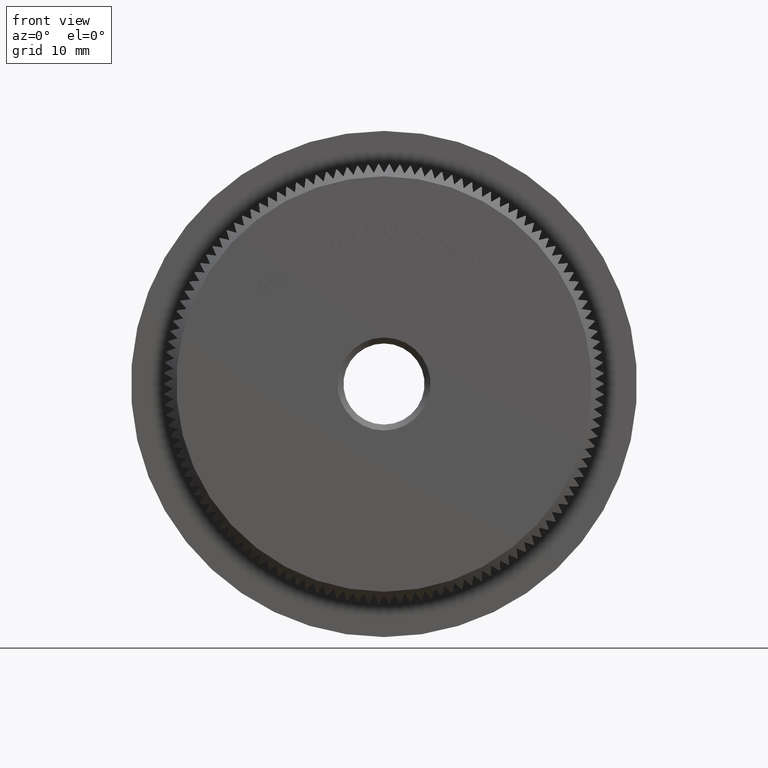
[diagram: clean part render]
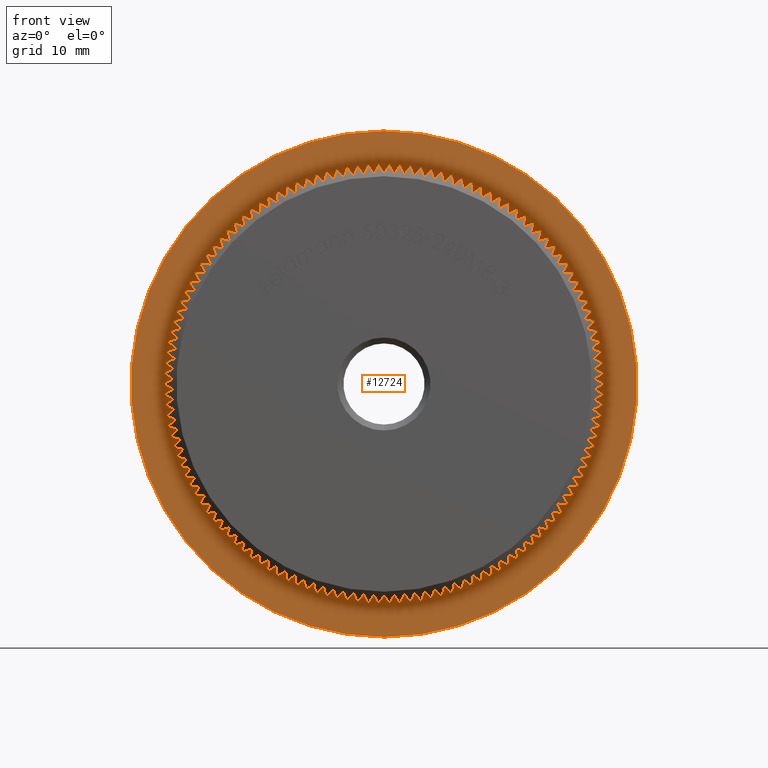
[diagram: same view with one face highlighted and labeled with its STEP entity id]
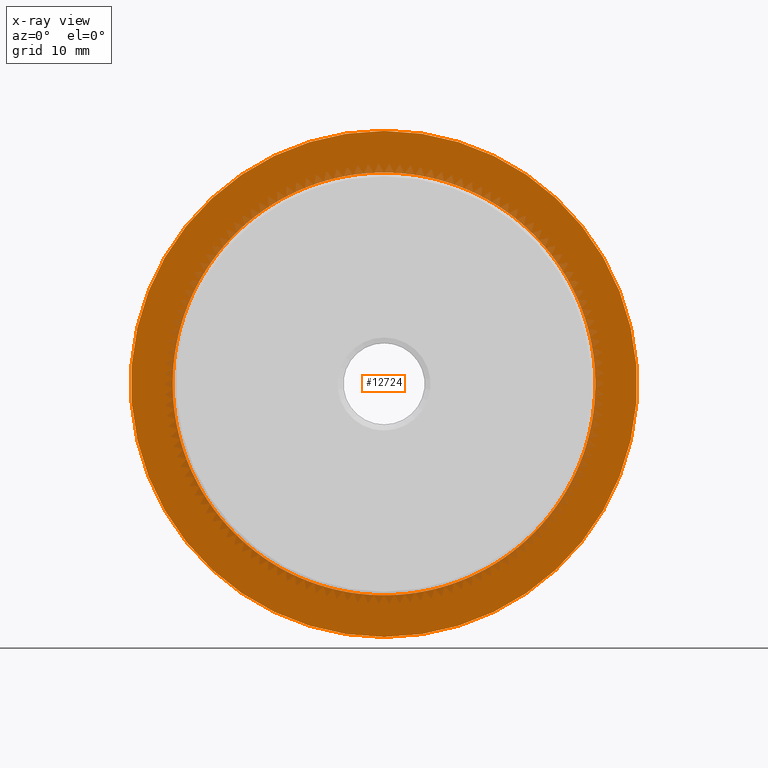
[diagram: x-ray of the same camera — body ghosted, the highlighted face saturated]
A machine part, front view. The second image highlights one B-rep face of the part: STEP entity #12724.
The next image is the same camera in x-ray: the body ghosted, the highlighted face saturated — about 10% of this face is hidden behind the body in this view.
In plain terms, the highlighted planar face has unit normal (0, -1, -0).
Its self-contained STEP definition (entity closure, byte-faithful):
#90 = DIRECTION ( 'NONE',  ( -0.0000000000000000000, -1.000000000000000000, -0.0000000000000000000 ) ) ;
#107 = VERTEX_POINT ( 'NONE', #12967 ) ;
#135 = VERTEX_POINT ( 'NONE', #469 ) ;
#143 = EDGE_CURVE ( 'NONE', #25154, #27039, #14040, .T. ) ;
#209 = AXIS2_PLACEMENT_3D ( 'NONE', #4540, #4654, #2223 ) ;
#238 = ORIENTED_EDGE ( 'NONE', *, *, #29028, .F. ) ;
#383 = VERTEX_POINT ( 'NONE', #29850 ) ;
#423 = EDGE_CURVE ( 'NONE', #26834, #23877, #26195, .T. ) ;
#456 = DIRECTION ( 'NONE',  ( 0.0000000000000000000, 0.0000000000000000000, -1.000000000000000000 ) ) ;
#469 = CARTESIAN_POINT ( 'NONE',  ( -15.86675679013397800, 7.999999999999998200, 7.844490357106532300 ) ) ;
#470 = CARTESIAN_POINT ( 'NONE',  ( -13.52838825366145900, 8.000000000000003600, -11.41370716543028900 ) ) ;
#502 = VERTEX_POINT ( 'NONE', #17788 ) ;
#571 = CIRCLE ( 'NONE', #26278, 17.69999999999999900 ) ;
#586 = DIRECTION ( 'NONE',  ( -0.0000000000000000000, -1.000000000000000000, -0.0000000000000000000 ) ) ;
#604 = ORIENTED_EDGE ( 'NONE', *, *, #16678, .F. ) ;
#638 = CARTESIAN_POINT ( 'NONE',  ( 0.0000000000000000000, 8.000000000000001800, 0.0000000000000000000 ) ) ;
#654 = VERTEX_POINT ( 'NONE', #6279 ) ;
#657 = ORIENTED_EDGE ( 'NONE', *, *, #10336, .F. ) ;
#695 = CARTESIAN_POINT ( 'NONE',  ( -16.83370033842423700, 7.999999999999992900, 5.469600800436523100 ) ) ;
#726 = EDGE_CURVE ( 'NONE', #16441, #30056, #4517, .T. ) ;
#733 = CIRCLE ( 'NONE', #1978, 17.69999999999999900 ) ;
#767 = ORIENTED_EDGE ( 'NONE', *, *, #10443, .F. ) ;
#773 = EDGE_CURVE ( 'NONE', #23348, #28368, #20703, .T. ) ;
#772 = AXIS2_PLACEMENT_3D ( 'NONE', #3950, #16109, #26605 ) ;
#812 = EDGE_CURVE ( 'NONE', #6471, #8829, #24218, .T. ) ;
#930 = VERTEX_POINT ( 'NONE', #20227 ) ;
#937 = DIRECTION ( 'NONE',  ( 0.0000000000000000000, 0.0000000000000000000, -1.000000000000000000 ) ) ;
#956 = CIRCLE ( 'NONE', #5712, 17.69999999999999900 ) ;
#967 = EDGE_CURVE ( 'NONE', #7982, #502, #571, .T. ) ;
#968 = CIRCLE ( 'NONE', #772, 17.69999999999999900 ) ;
#1021 = ORIENTED_EDGE ( 'NONE', *, *, #3367, .F. ) ;
#1035 = DIRECTION ( 'NONE',  ( 0.0000000000000000000, 0.0000000000000000000, -1.000000000000000000 ) ) ;
#1052 = CARTESIAN_POINT ( 'NONE',  ( -8.225600145174608400, 8.000000000000010700, -15.67257165406186400 ) ) ;
#1097 = ORIENTED_EDGE ( 'NONE', *, *, #19684, .F. ) ;
#1138 = CARTESIAN_POINT ( 'NONE',  ( 0.0000000000000000000, 8.000000000000001800, 0.0000000000000000000 ) ) ;
#1140 = ORIENTED_EDGE ( 'NONE', *, *, #32524, .F. ) ;
#1152 = EDGE_CURVE ( 'NONE', #1463, #25154, #30532, .T. ) ;
#1196 = AXIS2_PLACEMENT_3D ( 'NONE', #9760, #32603, #17347 ) ;
#1253 = VERTEX_POINT ( 'NONE', #1563 ) ;
#1336 = DIRECTION ( 'NONE',  ( 0.0000000000000000000, 0.0000000000000000000, -1.000000000000000000 ) ) ;
#1357 = CARTESIAN_POINT ( 'NONE',  ( 0.0000000000000000000, 8.000000000000001800, 0.0000000000000000000 ) ) ;
#1437 = AXIS2_PLACEMENT_3D ( 'NONE', #21181, #26099, #31284 ) ;
#1463 = VERTEX_POINT ( 'NONE', #29500 ) ;
#1469 = AXIS2_PLACEMENT_3D ( 'NONE', #8303, #23155, #15460 ) ;
#1493 = CARTESIAN_POINT ( 'NONE',  ( -0.8551468176013543600, 7.999999999999998200, -17.67933041493218800 ) ) ;
#1539 = CIRCLE ( 'NONE', #15294, 17.69999999999999900 ) ;
#1543 = EDGE_CURVE ( 'NONE', #23663, #1922, #6469, .T. ) ;
#1563 = CARTESIAN_POINT ( 'NONE',  ( -7.458799607573674900, 7.999999999999989300, -16.05167618705470300 ) ) ;
#1594 = DIRECTION ( 'NONE',  ( -0.0000000000000000000, -1.000000000000000000, -0.0000000000000000000 ) ) ;
#1618 = DIRECTION ( 'NONE',  ( 0.0000000000000000000, 0.0000000000000000000, -1.000000000000000000 ) ) ;
#1651 = CARTESIAN_POINT ( 'NONE',  ( 0.0000000000000000000, 8.000000000000001800, 0.0000000000000000000 ) ) ;
#1670 = DIRECTION ( 'NONE',  ( 0.0000000000000000000, 0.0000000000000000000, -1.000000000000000000 ) ) ;
#1677 = CIRCLE ( 'NONE', #8940, 17.69999999999999900 ) ;
#1685 = EDGE_CURVE ( 'NONE', #15417, #26578, #8872, .T. ) ;
#1695 = PLANE ( 'NONE',  #28983 ) ;
#1698 = DIRECTION ( 'NONE',  ( -0.0000000000000000000, -1.000000000000000000, -0.0000000000000000000 ) ) ;
#1730 = ORIENTED_EDGE ( 'NONE', *, *, #9085, .F. ) ;
#1763 = CARTESIAN_POINT ( 'NONE',  ( -13.52838825366153900, 8.000000000000003600, 11.41370716543019400 ) ) ;
#1830 = CARTESIAN_POINT ( 'NONE',  ( 7.458799607573889800, 7.999999999999998200, -16.05167618705460000 ) ) ;
#1842 = DIRECTION ( 'NONE',  ( -0.0000000000000000000, -1.000000000000000000, -0.0000000000000000000 ) ) ;
#1862 = CARTESIAN_POINT ( 'NONE',  ( 0.0000000000000000000, 8.000000000000001800, 0.0000000000000000000 ) ) ;
#1866 = EDGE_CURVE ( 'NONE', #4666, #2871, #14767, .T. ) ;
#1886 = VERTEX_POINT ( 'NONE', #2226 ) ;
#1909 = DIRECTION ( 'NONE',  ( 0.0000000000000000000, 0.0000000000000000000, -1.000000000000000000 ) ) ;
#1922 = VERTEX_POINT ( 'NONE', #12617 ) ;
#1943 = VERTEX_POINT ( 'NONE', #8529 ) ;
#1948 = CARTESIAN_POINT ( 'NONE',  ( 0.0000000000000000000, 8.000000000000001800, 0.0000000000000000000 ) ) ;
#1949 = VERTEX_POINT ( 'NONE', #4995 ) ;
#1959 = DIRECTION ( 'NONE',  ( -0.0000000000000000000, -1.000000000000000000, -0.0000000000000000000 ) ) ;
#1978 = AXIS2_PLACEMENT_3D ( 'NONE', #20890, #30992, #1035 ) ;
#1981 = DIRECTION ( 'NONE',  ( -0.0000000000000000000, -1.000000000000000000, -0.0000000000000000000 ) ) ;
#1986 = CIRCLE ( 'NONE', #27479, 17.69999999999999900 ) ;
#2044 = CARTESIAN_POINT ( 'NONE',  ( -14.06402493093340000, 8.000000000000003600, -10.74677638839125600 ) ) ;
#2117 = AXIS2_PLACEMENT_3D ( 'NONE', #17775, #90, #12910 ) ;
#2120 = CARTESIAN_POINT ( 'NONE',  ( -10.40379896557679600, 7.999999999999992900, 14.31960080043655900 ) ) ;
#2151 = VERTEX_POINT ( 'NONE', #30481 ) ;
#2194 = DIRECTION ( 'NONE',  ( -0.0000000000000000000, -1.000000000000000000, -0.0000000000000000000 ) ) ;
#2217 = AXIS2_PLACEMENT_3D ( 'NONE', #22637, #15153, #5327 ) ;
#2223 = DIRECTION ( 'NONE',  ( 0.0000000000000000000, 0.0000000000000000000, -1.000000000000000000 ) ) ;
#2226 = CARTESIAN_POINT ( 'NONE',  ( -15.46923417748939000, 7.999999999999998200, 8.601906414394093800 ) ) ;
#2247 = CARTESIAN_POINT ( 'NONE',  ( -9.699821380177676000, 8.000000000000007100, 14.80552144278100200 ) ) ;
#2248 = CIRCLE ( 'NONE', #19449, 17.69999999999999900 ) ;
#2266 = AXIS2_PLACEMENT_3D ( 'NONE', #31169, #13475, #23809 ) ;
#2294 = CARTESIAN_POINT ( 'NONE',  ( 0.0000000000000000000, 8.000000000000001800, 0.0000000000000000000 ) ) ;
#2301 = CARTESIAN_POINT ( 'NONE',  ( 0.0000000000000000000, 8.000000000000001800, 0.0000000000000000000 ) ) ;
#2397 = VERTEX_POINT ( 'NONE', #4260 ) ;
#2456 = EDGE_CURVE ( 'NONE', #13366, #10004, #7655, .T. ) ;
#2475 = ORIENTED_EDGE ( 'NONE', *, *, #21014, .F. ) ;
#2534 = DIRECTION ( 'NONE',  ( -0.0000000000000000000, -1.000000000000000000, -0.0000000000000000000 ) ) ;
#2552 = EDGE_CURVE ( 'NONE', #24264, #1943, #17114, .T. ) ;
#2579 = ORIENTED_EDGE ( 'NONE', *, *, #30538, .F. ) ;
#2587 = VERTEX_POINT ( 'NONE', #14654 ) ;
#2611 = EDGE_CURVE ( 'NONE', #7304, #18815, #14736, .T. ) ;
#2652 = VERTEX_POINT ( 'NONE', #18533 ) ;
#2659 = DIRECTION ( 'NONE',  ( -0.0000000000000000000, -1.000000000000000000, -0.0000000000000000000 ) ) ;
#2714 = CARTESIAN_POINT ( 'NONE',  ( 0.0000000000000000000, 8.000000000000001800, 0.0000000000000000000 ) ) ;
#2769 = AXIS2_PLACEMENT_3D ( 'NONE', #26777, #28993, #11765 ) ;
#2796 = EDGE_CURVE ( 'NONE', #930, #10026, #25717, .T. ) ;
#2859 = VERTEX_POINT ( 'NONE', #32239 ) ;
#2871 = VERTEX_POINT ( 'NONE', #19081 ) ;
#2932 = AXIS2_PLACEMENT_3D ( 'NONE', #12844, #22868, #7996 ) ;
#2941 = AXIS2_PLACEMENT_3D ( 'NONE', #6343, #3908, #21550 ) ;
#2961 = CIRCLE ( 'NONE', #14951, 17.69999999999999900 ) ;
#2987 = CARTESIAN_POINT ( 'NONE',  ( -17.57094707153554900, 8.000000000000003600, -2.133499240519285000 ) ) ;
#3010 = CARTESIAN_POINT ( 'NONE',  ( 0.0000000000000000000, 8.000000000000001800, 0.0000000000000000000 ) ) ;
#3149 = CARTESIAN_POINT ( 'NONE',  ( -17.57094707153556400, 8.000000000000003600, 2.133499240519162800 ) ) ;
#3152 = CARTESIAN_POINT ( 'NONE',  ( -12.96115539878061700, 7.999999999999992900, 12.05398070052628700 ) ) ;
#3165 = ORIENTED_EDGE ( 'NONE', *, *, #423, .F. ) ;
#3176 = VERTEX_POINT ( 'NONE', #1052 ) ;
#3185 = DIRECTION ( 'NONE',  ( -0.0000000000000000000, -1.000000000000000000, -0.0000000000000000000 ) ) ;
#3204 = DIRECTION ( 'NONE',  ( 0.0000000000000000000, 0.0000000000000000000, -1.000000000000000000 ) ) ;
#3213 = CIRCLE ( 'NONE', #27615, 17.69999999999999900 ) ;
#3251 = DIRECTION ( 'NONE',  ( -0.0000000000000000000, -1.000000000000000000, -0.0000000000000000000 ) ) ;
#3319 = AXIS2_PLACEMENT_3D ( 'NONE', #1651, #1981, #7082 ) ;
#3324 = EDGE_CURVE ( 'NONE', #19939, #3524, #23352, .T. ) ;
#3351 = CARTESIAN_POINT ( 'NONE',  ( -16.83370033842419400, 8.000000000000007100, -5.469600800436639400 ) ) ;
#3356 = DIRECTION ( 'NONE',  ( -0.0000000000000000000, -1.000000000000000000, -0.0000000000000000000 ) ) ;
#3364 = CARTESIAN_POINT ( 'NONE',  ( 0.0000000000000000000, 8.000000000000001800, 0.0000000000000000000 ) ) ;
#3365 = CIRCLE ( 'NONE', #15781, 17.69999999999999900 ) ;
#3367 = EDGE_CURVE ( 'NONE', #24944, #1463, #14699, .T. ) ;
#3366 = AXIS2_PLACEMENT_3D ( 'NONE', #27898, #7576, #32661 ) ;
#3377 = ORIENTED_EDGE ( 'NONE', *, *, #2456, .F. ) ;
#3405 = ORIENTED_EDGE ( 'NONE', *, *, #14908, .F. ) ;
#3414 = CIRCLE ( 'NONE', #31428, 17.69999999999999900 ) ;
#3497 = DIRECTION ( 'NONE',  ( -0.0000000000000000000, -1.000000000000000000, -0.0000000000000000000 ) ) ;
#3524 = VERTEX_POINT ( 'NONE', #27446 ) ;
#3550 = CARTESIAN_POINT ( 'NONE',  ( 0.0000000000000000000, 8.000000000000001800, 0.0000000000000000000 ) ) ;
#3591 = CARTESIAN_POINT ( 'NONE',  ( 0.0000000000000000000, 8.000000000000001800, 0.0000000000000000000 ) ) ;
#3616 = AXIS2_PLACEMENT_3D ( 'NONE', #17402, #10130, #29997 ) ;
#3635 = VERTEX_POINT ( 'NONE', #695 ) ;
#3726 = CARTESIAN_POINT ( 'NONE',  ( -16.54978749553181700, 8.000000000000003600, -6.276506500652951500 ) ) ;
#3796 = DIRECTION ( 'NONE',  ( -0.0000000000000000000, -1.000000000000000000, -0.0000000000000000000 ) ) ;
#3799 = AXIS2_PLACEMENT_3D ( 'NONE', #14621, #29456, #4143 ) ;
#3800 = CARTESIAN_POINT ( 'NONE',  ( 0.0000000000000000000, 8.000000000000001800, 0.0000000000000000000 ) ) ;
#3806 = VERTEX_POINT ( 'NONE', #1763 ) ;
#3816 = CARTESIAN_POINT ( 'NONE',  ( 0.0000000000000000000, 8.000000000000001800, 0.0000000000000000000 ) ) ;
#3841 = CIRCLE ( 'NONE', #25726, 17.69999999999999900 ) ;
#3887 = CARTESIAN_POINT ( 'NONE',  ( 0.0000000000000000000, 8.000000000000001800, 0.0000000000000000000 ) ) ;
#3908 = DIRECTION ( 'NONE',  ( -0.0000000000000000000, -1.000000000000000000, -0.0000000000000000000 ) ) ;
#3915 = DIRECTION ( 'NONE',  ( 0.0000000000000000000, 0.0000000000000000000, -1.000000000000000000 ) ) ;
#3950 = CARTESIAN_POINT ( 'NONE',  ( 0.0000000000000000000, 8.000000000000001800, 0.0000000000000000000 ) ) ;
#3997 = CARTESIAN_POINT ( 'NONE',  ( 11.73727105086219100, 8.000000000000003600, -13.24864024262838800 ) ) ;
#4025 = DIRECTION ( 'NONE',  ( -0.0000000000000000000, -1.000000000000000000, -0.0000000000000000000 ) ) ;
#4038 = DIRECTION ( 'NONE',  ( 0.0000000000000000000, 0.0000000000000000000, -1.000000000000000000 ) ) ;
#4090 = DIRECTION ( 'NONE',  ( -0.0000000000000000000, -1.000000000000000000, -0.0000000000000000000 ) ) ;
#4106 = CARTESIAN_POINT ( 'NONE',  ( 0.0000000000000000000, 8.000000000000001800, 0.0000000000000000000 ) ) ;
#4143 = DIRECTION ( 'NONE',  ( 0.0000000000000000000, 0.0000000000000000000, -1.000000000000000000 ) ) ;
#4156 = AXIS2_PLACEMENT_3D ( 'NONE', #29476, #16750, #1618 ) ;
#4180 = CIRCLE ( 'NONE', #14825, 17.69999999999999900 ) ;
#4200 = AXIS2_PLACEMENT_3D ( 'NONE', #20082, #22187, #17474 ) ;
#4216 = DIRECTION ( 'NONE',  ( -0.0000000000000000000, -1.000000000000000000, -0.0000000000000000000 ) ) ;
#4253 = EDGE_CURVE ( 'NONE', #5334, #14165, #25721, .T. ) ;
#4260 = CARTESIAN_POINT ( 'NONE',  ( 17.28300709527807300, 8.000000000000007100, 3.819380282790360200 ) ) ;
#4278 = DIRECTION ( 'NONE',  ( 0.0000000000000000000, 0.0000000000000000000, -1.000000000000000000 ) ) ;
#4287 = CIRCLE ( 'NONE', #14248, 17.69999999999999900 ) ;
#4311 = CARTESIAN_POINT ( 'NONE',  ( 5.874769000375086300, 8.000000000000007100, -16.69661909466200800 ) ) ;
#4315 = ORIENTED_EDGE ( 'NONE', *, *, #12824, .F. ) ;
#4366 = DIRECTION ( 'NONE',  ( -0.0000000000000000000, -1.000000000000000000, -0.0000000000000000000 ) ) ;
#4367 = DIRECTION ( 'NONE',  ( 0.0000000000000000000, 0.0000000000000000000, -1.000000000000000000 ) ) ;
#4415 = CIRCLE ( 'NONE', #18177, 17.69999999999999900 ) ;
#4445 = EDGE_CURVE ( 'NONE', #26919, #21287, #29225, .T. ) ;
#4450 = ORIENTED_EDGE ( 'NONE', *, *, #20009, .F. ) ;
#4484 = EDGE_CURVE ( 'NONE', #6335, #32467, #5247, .T. ) ;
#4506 = DIRECTION ( 'NONE',  ( 0.0000000000000000000, 0.0000000000000000000, -1.000000000000000000 ) ) ;
#4517 = CIRCLE ( 'NONE', #21886, 17.69999999999999900 ) ;
#4516 = CARTESIAN_POINT ( 'NONE',  ( 0.0000000000000000000, 8.000000000000001800, 0.0000000000000000000 ) ) ;
#4540 = CARTESIAN_POINT ( 'NONE',  ( 0.0000000000000000000, 8.000000000000001800, 0.0000000000000000000 ) ) ;
#4563 = VERTEX_POINT ( 'NONE', #12421 ) ;
#4575 = CARTESIAN_POINT ( 'NONE',  ( 17.44735163249025000, 8.000000000000007100, -2.979919631842407900 ) ) ;
#4589 = EDGE_CURVE ( 'NONE', #23877, #21258, #21401, .T. ) ;
#4598 = DIRECTION ( 'NONE',  ( 0.0000000000000000000, 0.0000000000000000000, -1.000000000000000000 ) ) ;
#4621 = DIRECTION ( 'NONE',  ( 0.0000000000000000000, 0.0000000000000000000, -1.000000000000000000 ) ) ;
#4633 = ORIENTED_EDGE ( 'NONE', *, *, #7571, .F. ) ;
#4635 = AXIS2_PLACEMENT_3D ( 'NONE', #5515, #7843, #10293 ) ;
#4641 = DIRECTION ( 'NONE',  ( -0.0000000000000000000, -1.000000000000000000, -0.0000000000000000000 ) ) ;
#4650 = VERTEX_POINT ( 'NONE', #30660 ) ;
#4654 = DIRECTION ( 'NONE',  ( -0.0000000000000000000, -1.000000000000000000, -0.0000000000000000000 ) ) ;
#4666 = VERTEX_POINT ( 'NONE', #27895 ) ;
#4686 = CIRCLE ( 'NONE', #27925, 17.69999999999999900 ) ;
#4693 = AXIS2_PLACEMENT_3D ( 'NONE', #23320, #25809, #6124 ) ;
#4706 = ORIENTED_EDGE ( 'NONE', *, *, #29035, .F. ) ;
#4745 = CIRCLE ( 'NONE', #8747, 17.69999999999999900 ) ;
#4814 = CARTESIAN_POINT ( 'NONE',  ( 0.0000000000000000000, 8.000000000000001800, 0.0000000000000000000 ) ) ;
#4832 = ORIENTED_EDGE ( 'NONE', *, *, #812, .F. ) ;
#4884 = AXIS2_PLACEMENT_3D ( 'NONE', #12539, #7575, #10134 ) ;
#4893 = CIRCLE ( 'NONE', #24876, 17.69999999999999900 ) ;
#4936 = DIRECTION ( 'NONE',  ( -0.0000000000000000000, -1.000000000000000000, -0.0000000000000000000 ) ) ;
#4939 = EDGE_CURVE ( 'NONE', #27039, #16441, #20603, .T. ) ;
#4955 = ORIENTED_EDGE ( 'NONE', *, *, #24929, .F. ) ;
#4995 = CARTESIAN_POINT ( 'NONE',  ( 0.8551468176016011600, 7.999999999999989300, -17.67933041493217800 ) ) ;
#5029 = ORIENTED_EDGE ( 'NONE', *, *, #26942, .F. ) ;
#5031 = ORIENTED_EDGE ( 'NONE', *, *, #17666, .F. ) ;
#5066 = DIRECTION ( 'NONE',  ( 0.0000000000000000000, 0.0000000000000000000, -1.000000000000000000 ) ) ;
#5085 = CARTESIAN_POINT ( 'NONE',  ( 16.54978749553177100, 7.999999999999998200, 6.276506500653071400 ) ) ;
#5154 = ORIENTED_EDGE ( 'NONE', *, *, #15293, .F. ) ;
#5225 = EDGE_CURVE ( 'NONE', #26618, #15417, #20573, .T. ) ;
#5247 = CIRCLE ( 'NONE', #15625, 17.69999999999999900 ) ;
#5250 = DIRECTION ( 'NONE',  ( -0.0000000000000000000, -1.000000000000000000, -0.0000000000000000000 ) ) ;
#5310 = DIRECTION ( 'NONE',  ( 0.0000000000000000000, 0.0000000000000000000, -1.000000000000000000 ) ) ;
#5327 = DIRECTION ( 'NONE',  ( 0.0000000000000000000, 0.0000000000000000000, -1.000000000000000000 ) ) ;
#5334 = VERTEX_POINT ( 'NONE', #24041 ) ;
#5352 = DIRECTION ( 'NONE',  ( -0.0000000000000000000, -1.000000000000000000, -0.0000000000000000000 ) ) ;
#5354 = CARTESIAN_POINT ( 'NONE',  ( 12.96115539878069700, 8.000000000000003600, -12.05398070052619600 ) ) ;
#5373 = DIRECTION ( 'NONE',  ( 0.0000000000000000000, 0.0000000000000000000, -1.000000000000000000 ) ) ;
#5386 = CIRCLE ( 'NONE', #2217, 17.69999999999999900 ) ;
#5393 = DIRECTION ( 'NONE',  ( 0.0000000000000000000, 0.0000000000000000000, -1.000000000000000000 ) ) ;
#5407 = ORIENTED_EDGE ( 'NONE', *, *, #8004, .F. ) ;
#5438 = DIRECTION ( 'NONE',  ( 0.0000000000000000000, 0.0000000000000000000, -1.000000000000000000 ) ) ;
#5481 = EDGE_CURVE ( 'NONE', #2151, #9628, #26066, .T. ) ;
#5496 = FACE_OUTER_BOUND ( 'NONE', #27643, .T. ) ;
#5503 = AXIS2_PLACEMENT_3D ( 'NONE', #3591, #20612, #23902 ) ;
#5515 = CARTESIAN_POINT ( 'NONE',  ( 0.0000000000000000000, 8.000000000000001800, 0.0000000000000000000 ) ) ;
#5517 = EDGE_CURVE ( 'NONE', #12491, #24437, #14284, .T. ) ;
#5520 = ORIENTED_EDGE ( 'NONE', *, *, #15479, .F. ) ;
#5533 = VERTEX_POINT ( 'NONE', #4311 ) ;
#5560 = ORIENTED_EDGE ( 'NONE', *, *, #21649, .F. ) ;
#5622 = EDGE_CURVE ( 'NONE', #29199, #29752, #24110, .T. ) ;
#5632 = CARTESIAN_POINT ( 'NONE',  ( 5.061238507656576700, 8.000000000000003600, 16.96095117523231000 ) ) ;
#5648 = DIRECTION ( 'NONE',  ( -0.0000000000000000000, -1.000000000000000000, -0.0000000000000000000 ) ) ;
#5694 = DIRECTION ( 'NONE',  ( 0.0000000000000000000, 0.0000000000000000000, -1.000000000000000000 ) ) ;
#5712 = AXIS2_PLACEMENT_3D ( 'NONE', #1862, #29732, #9646 ) ;
#5718 = EDGE_CURVE ( 'NONE', #24035, #30760, #26818, .T. ) ;
#5764 = CARTESIAN_POINT ( 'NONE',  ( 0.0000000000000000000, 8.000000000000001800, 0.0000000000000000000 ) ) ;
#5818 = CARTESIAN_POINT ( 'NONE',  ( 0.0000000000000000000, 8.000000000000001800, 0.0000000000000000000 ) ) ;
#5839 = ORIENTED_EDGE ( 'NONE', *, *, #20243, .F. ) ;
#5951 = EDGE_CURVE ( 'NONE', #2871, #4650, #15859, .T. ) ;
#5964 = VERTEX_POINT ( 'NONE', #24273 ) ;
#6041 = DIRECTION ( 'NONE',  ( 0.0000000000000000000, 0.0000000000000000000, -1.000000000000000000 ) ) ;
#6065 = CARTESIAN_POINT ( 'NONE',  ( -11.08347799642817200, 8.000000000000003600, 13.80023606691902100 ) ) ;
#6078 = CARTESIAN_POINT ( 'NONE',  ( 0.0000000000000000000, 8.000000000000003600, -17.69999999999999900 ) ) ;
#6100 = CARTESIAN_POINT ( 'NONE',  ( 0.0000000000000000000, 8.000000000000001800, 0.0000000000000000000 ) ) ;
#6124 = DIRECTION ( 'NONE',  ( 0.0000000000000000000, 0.0000000000000000000, -1.000000000000000000 ) ) ;
#6161 = CIRCLE ( 'NONE', #18019, 17.69999999999999900 ) ;
#6170 = DIRECTION ( 'NONE',  ( 0.0000000000000000000, 0.0000000000000000000, -1.000000000000000000 ) ) ;
#6199 = EDGE_CURVE ( 'NONE', #13200, #13366, #11916, .T. ) ;
#6279 = CARTESIAN_POINT ( 'NONE',  ( -17.44735163249021100, 8.000000000000003600, -2.979919631842651700 ) ) ;
#6291 = AXIS2_PLACEMENT_3D ( 'NONE', #8749, #11291, #8856 ) ;
#6334 = ORIENTED_EDGE ( 'NONE', *, *, #5951, .F. ) ;
#6335 = VERTEX_POINT ( 'NONE', #27275 ) ;
#6343 = CARTESIAN_POINT ( 'NONE',  ( 0.0000000000000000000, 8.000000000000001800, 0.0000000000000000000 ) ) ;
#6348 = DIRECTION ( 'NONE',  ( 0.0000000000000000000, 0.0000000000000000000, -1.000000000000000000 ) ) ;
#6371 = CARTESIAN_POINT ( 'NONE',  ( 5.874769000374738100, 7.999999999999998200, 16.69661909466213200 ) ) ;
#6461 = DIRECTION ( 'NONE',  ( -0.0000000000000000000, -1.000000000000000000, -0.0000000000000000000 ) ) ;
#6469 = CIRCLE ( 'NONE', #29031, 17.69999999999999900 ) ;
#6471 = VERTEX_POINT ( 'NONE', #6963 ) ;
#6478 = CARTESIAN_POINT ( 'NONE',  ( -15.86675679013392300, 8.000000000000007100, -7.844490357106640700 ) ) ;
#6528 = AXIS2_PLACEMENT_3D ( 'NONE', #14128, #31707, #16673 ) ;
#6582 = CARTESIAN_POINT ( 'NONE',  ( 0.0000000000000000000, 8.000000000000001800, 0.0000000000000000000 ) ) ;
#6593 = ORIENTED_EDGE ( 'NONE', *, *, #11218, .F. ) ;
#6636 = DIRECTION ( 'NONE',  ( 0.0000000000000000000, 0.0000000000000000000, -1.000000000000000000 ) ) ;
#6743 = CIRCLE ( 'NONE', #25990, 17.69999999999999900 ) ;
#6747 = CARTESIAN_POINT ( 'NONE',  ( 0.0000000000000000000, 8.000000000000001800, 0.0000000000000000000 ) ) ;
#6754 = CARTESIAN_POINT ( 'NONE',  ( 0.0000000000000000000, 8.000000000000001800, 0.0000000000000000000 ) ) ;
#6797 = CARTESIAN_POINT ( 'NONE',  ( -17.28300709527812600, 8.000000000000010700, 3.819380282790119100 ) ) ;
#6892 = DIRECTION ( 'NONE',  ( 0.0000000000000000000, 0.0000000000000000000, -1.000000000000000000 ) ) ;
#6928 = AXIS2_PLACEMENT_3D ( 'NONE', #22304, #22634, #25222 ) ;
#6942 = DIRECTION ( 'NONE',  ( -0.0000000000000000000, -1.000000000000000000, -0.0000000000000000000 ) ) ;
#6954 = CIRCLE ( 'NONE', #29792, 17.69999999999999900 ) ;
#6963 = CARTESIAN_POINT ( 'NONE',  ( -14.06402493093347200, 8.000000000000003600, 10.74677638839116200 ) ) ;
#6980 = ORIENTED_EDGE ( 'NONE', *, *, #12637, .F. ) ;
#7030 = CIRCLE ( 'NONE', #32360, 17.69999999999999900 ) ;
#7079 = DIRECTION ( 'NONE',  ( 0.0000000000000000000, 0.0000000000000000000, -1.000000000000000000 ) ) ;
#7082 = DIRECTION ( 'NONE',  ( 0.0000000000000000000, 0.0000000000000000000, -1.000000000000000000 ) ) ;
#7122 = AXIS2_PLACEMENT_3D ( 'NONE', #19387, #19286, #4278 ) ;
#7127 = EDGE_CURVE ( 'NONE', #2652, #7982, #30041, .T. ) ;
#7128 = CARTESIAN_POINT ( 'NONE',  ( 0.0000000000000000000, 8.000000000000001800, 0.0000000000000000000 ) ) ;
#7187 = ORIENTED_EDGE ( 'NONE', *, *, #29217, .F. ) ;
#7196 = CIRCLE ( 'NONE', #29947, 17.69999999999999900 ) ;
#7198 = CARTESIAN_POINT ( 'NONE',  ( 0.0000000000000000000, 8.000000000000001800, 0.0000000000000000000 ) ) ;
#7203 = ORIENTED_EDGE ( 'NONE', *, *, #11922, .F. ) ;
#7304 = VERTEX_POINT ( 'NONE', #19897 ) ;
#7324 = EDGE_CURVE ( 'NONE', #30757, #12974, #13926, .T. ) ;
#7470 = AXIS2_PLACEMENT_3D ( 'NONE', #20078, #15128, #25531 ) ;
#7479 = EDGE_CURVE ( 'NONE', #23833, #24264, #25315, .T. ) ;
#7487 = ORIENTED_EDGE ( 'NONE', *, *, #12548, .F. ) ;
#7493 = DIRECTION ( 'NONE',  ( -0.0000000000000000000, -1.000000000000000000, -0.0000000000000000000 ) ) ;
#7497 = DIRECTION ( 'NONE',  ( 0.0000000000000000000, 0.0000000000000000000, -1.000000000000000000 ) ) ;
#7500 = CIRCLE ( 'NONE', #12346, 17.69999999999999900 ) ;
#7509 = CIRCLE ( 'NONE', #1469, 17.69999999999999900 ) ;
#7571 = EDGE_CURVE ( 'NONE', #19082, #23833, #11993, .T. ) ;
#7575 = DIRECTION ( 'NONE',  ( -0.0000000000000000000, -1.000000000000000000, -0.0000000000000000000 ) ) ;
#7576 = DIRECTION ( 'NONE',  ( -0.0000000000000000000, -1.000000000000000000, -0.0000000000000000000 ) ) ;
#7655 = CIRCLE ( 'NONE', #31775, 17.69999999999999900 ) ;
#7698 = CIRCLE ( 'NONE', #6528, 17.69999999999999900 ) ;
#7731 = CARTESIAN_POINT ( 'NONE',  ( 0.0000000000000000000, 8.000000000000001800, 0.0000000000000000000 ) ) ;
#7749 = ORIENTED_EDGE ( 'NONE', *, *, #31307, .F. ) ;
#7758 = CIRCLE ( 'NONE', #15894, 17.69999999999999900 ) ;
#7774 = CARTESIAN_POINT ( 'NONE',  ( -17.07829729418084600, 7.999999999999992900, -4.649920594115058300 ) ) ;
#7804 = AXIS2_PLACEMENT_3D ( 'NONE', #7128, #1594, #24601 ) ;
#7843 = DIRECTION ( 'NONE',  ( -0.0000000000000000000, -1.000000000000000000, -0.0000000000000000000 ) ) ;
#7856 = CIRCLE ( 'NONE', #26411, 17.69999999999999900 ) ;
#7936 = CIRCLE ( 'NONE', #26616, 17.69999999999999900 ) ;
#7948 = EDGE_CURVE ( 'NONE', #9324, #9469, #7196, .T. ) ;
#7982 = VERTEX_POINT ( 'NONE', #11652 ) ;
#7996 = DIRECTION ( 'NONE',  ( 0.0000000000000000000, 0.0000000000000000000, -1.000000000000000000 ) ) ;
#8000 = VERTEX_POINT ( 'NONE', #16484 ) ;
#8004 = EDGE_CURVE ( 'NONE', #10477, #6335, #4415, .T. ) ;
#8066 = ORIENTED_EDGE ( 'NONE', *, *, #24423, .F. ) ;
#8070 = AXIS2_PLACEMENT_3D ( 'NONE', #10503, #12681, #5066 ) ;
#8076 = CARTESIAN_POINT ( 'NONE',  ( 0.0000000000000000000, 8.000000000000001800, 0.0000000000000000000 ) ) ;
#8152 = AXIS2_PLACEMENT_3D ( 'NONE', #22061, #22900, #23109 ) ;
#8178 = CARTESIAN_POINT ( 'NONE',  ( 16.83370033842415800, 8.000000000000003600, 5.469600800436761100 ) ) ;
#8264 = FACE_BOUND ( 'NONE', #24244, .T. ) ;
#8275 = DIRECTION ( 'NONE',  ( 0.0000000000000000000, 0.0000000000000000000, -1.000000000000000000 ) ) ;
#8303 = CARTESIAN_POINT ( 'NONE',  ( 0.0000000000000000000, 8.000000000000001800, 0.0000000000000000000 ) ) ;
#8332 = VERTEX_POINT ( 'NONE', #6797 ) ;
#8351 = VERTEX_POINT ( 'NONE', #1493 ) ;
#8354 = DIRECTION ( 'NONE',  ( 0.0000000000000000000, 0.0000000000000000000, -1.000000000000000000 ) ) ;
#8458 = CIRCLE ( 'NONE', #2941, 17.69999999999999900 ) ;
#8491 = AXIS2_PLACEMENT_3D ( 'NONE', #17070, #11696, #4367 ) ;
#8529 = CARTESIAN_POINT ( 'NONE',  ( 9.699821380177477100, 8.000000000000003600, 14.80552144278113300 ) ) ;
#8588 = EDGE_CURVE ( 'NONE', #26864, #28009, #15871, .T. ) ;
#8592 = DIRECTION ( 'NONE',  ( -0.0000000000000000000, -1.000000000000000000, -0.0000000000000000000 ) ) ;
#8597 = EDGE_CURVE ( 'NONE', #16820, #22394, #3213, .T. ) ;
#8611 = DIRECTION ( 'NONE',  ( 0.0000000000000000000, 0.0000000000000000000, -1.000000000000000000 ) ) ;
#8613 = ORIENTED_EDGE ( 'NONE', *, *, #15782, .F. ) ;
#8629 = CARTESIAN_POINT ( 'NONE',  ( 0.0000000000000000000, 8.000000000000001800, 0.0000000000000000000 ) ) ;
#8642 = EDGE_CURVE ( 'NONE', #30046, #25856, #31575, .T. ) ;
#8687 = CARTESIAN_POINT ( 'NONE',  ( -10.40379896557669400, 8.000000000000003600, -14.31960080043662800 ) ) ;
#8743 = VERTEX_POINT ( 'NONE', #18917 ) ;
#8747 = AXIS2_PLACEMENT_3D ( 'NONE', #13380, #15590, #456 ) ;
#8749 = CARTESIAN_POINT ( 'NONE',  ( 0.0000000000000000000, 8.000000000000001800, 0.0000000000000000000 ) ) ;
#8752 = ORIENTED_EDGE ( 'NONE', *, *, #2796, .F. ) ;
#8776 = DIRECTION ( 'NONE',  ( 0.0000000000000000000, 0.0000000000000000000, -1.000000000000000000 ) ) ;
#8789 = AXIS2_PLACEMENT_3D ( 'NONE', #15745, #28129, #8354 ) ;
#8800 = DIRECTION ( 'NONE',  ( 0.0000000000000000000, 0.0000000000000000000, -1.000000000000000000 ) ) ;
#8815 = DIRECTION ( 'NONE',  ( 0.0000000000000000000, 0.0000000000000000000, -1.000000000000000000 ) ) ;
#8829 = VERTEX_POINT ( 'NONE', #21654 ) ;
#8839 = AXIS2_PLACEMENT_3D ( 'NONE', #10429, #30305, #25654 ) ;
#8844 = CARTESIAN_POINT ( 'NONE',  ( 0.0000000000000000000, 8.000000000000000000, -21.19999999999999900 ) ) ;
#8856 = DIRECTION ( 'NONE',  ( 0.0000000000000000000, 0.0000000000000000000, -1.000000000000000000 ) ) ;
#8872 = CIRCLE ( 'NONE', #20423, 17.69999999999999900 ) ;
#8877 = AXIS2_PLACEMENT_3D ( 'NONE', #24487, #9461, #29208 ) ;
#8886 = AXIS2_PLACEMENT_3D ( 'NONE', #28080, #2534, #25219 ) ;
#8913 = DIRECTION ( 'NONE',  ( 0.0000000000000000000, 0.0000000000000000000, -1.000000000000000000 ) ) ;
#8940 = AXIS2_PLACEMENT_3D ( 'NONE', #14338, #29498, #4506 ) ;
#9085 = EDGE_CURVE ( 'NONE', #3524, #2397, #18989, .T. ) ;
#9109 = AXIS2_PLACEMENT_3D ( 'NONE', #18596, #8592, #11357 ) ;
#9126 = ORIENTED_EDGE ( 'NONE', *, *, #5481, .F. ) ;
#9156 = CARTESIAN_POINT ( 'NONE',  ( 0.0000000000000000000, 8.000000000000001800, 0.0000000000000000000 ) ) ;
#9244 = DIRECTION ( 'NONE',  ( -0.0000000000000000000, -1.000000000000000000, -0.0000000000000000000 ) ) ;
#9274 = DIRECTION ( 'NONE',  ( -0.0000000000000000000, -1.000000000000000000, -0.0000000000000000000 ) ) ;
#9324 = VERTEX_POINT ( 'NONE', #32361 ) ;
#9351 = CIRCLE ( 'NONE', #2769, 17.69999999999999900 ) ;
#9358 = ORIENTED_EDGE ( 'NONE', *, *, #2552, .F. ) ;
#9376 = AXIS2_PLACEMENT_3D ( 'NONE', #30916, #13765, #8275 ) ;
#9405 = DIRECTION ( 'NONE',  ( -0.0000000000000000000, -1.000000000000000000, -0.0000000000000000000 ) ) ;
#9418 = CARTESIAN_POINT ( 'NONE',  ( -2.557456177375102300, 7.999999999999998200, -17.51426327028362500 ) ) ;
#9425 = AXIS2_PLACEMENT_3D ( 'NONE', #10561, #25568, #12744 ) ;
#9461 = DIRECTION ( 'NONE',  ( -0.0000000000000000000, -1.000000000000000000, -0.0000000000000000000 ) ) ;
#9469 = VERTEX_POINT ( 'NONE', #10724 ) ;
#9481 = ORIENTED_EDGE ( 'NONE', *, *, #7324, .F. ) ;
#9509 = DIRECTION ( 'NONE',  ( -0.0000000000000000000, -1.000000000000000000, -0.0000000000000000000 ) ) ;
#9536 = CIRCLE ( 'NONE', #30642, 17.69999999999999900 ) ;
#9548 = DIRECTION ( 'NONE',  ( 0.0000000000000000000, 0.0000000000000000000, -1.000000000000000000 ) ) ;
#9570 = CARTESIAN_POINT ( 'NONE',  ( 7.458799607573560300, 8.000000000000003600, 16.05167618705475300 ) ) ;
#9572 = EDGE_CURVE ( 'NONE', #1949, #4563, #18962, .T. ) ;
#9578 = DIRECTION ( 'NONE',  ( 0.0000000000000000000, 0.0000000000000000000, -1.000000000000000000 ) ) ;
#9625 = EDGE_CURVE ( 'NONE', #13074, #26618, #15805, .T. ) ;
#9628 = VERTEX_POINT ( 'NONE', #6478 ) ;
#9646 = DIRECTION ( 'NONE',  ( 0.0000000000000000000, 0.0000000000000000000, -1.000000000000000000 ) ) ;
#9685 = CARTESIAN_POINT ( 'NONE',  ( -5.874769000374964600, 8.000000000000007100, 16.69661909466204700 ) ) ;
#9692 = DIRECTION ( 'NONE',  ( -0.0000000000000000000, -1.000000000000000000, -0.0000000000000000000 ) ) ;
#9715 = AXIS2_PLACEMENT_3D ( 'NONE', #26857, #11846, #6636 ) ;
#9760 = CARTESIAN_POINT ( 'NONE',  ( 0.0000000000000000000, 8.000000000000001800, 0.0000000000000000000 ) ) ;
#9776 = ORIENTED_EDGE ( 'NONE', *, *, #15771, .F. ) ;
#9811 = CARTESIAN_POINT ( 'NONE',  ( 0.0000000000000000000, 8.000000000000001800, 0.0000000000000000000 ) ) ;
#9840 = ORIENTED_EDGE ( 'NONE', *, *, #13215, .F. ) ;
#9865 = VERTEX_POINT ( 'NONE', #23892 ) ;
#9868 = ORIENTED_EDGE ( 'NONE', *, *, #12113, .F. ) ;
#9913 = AXIS2_PLACEMENT_3D ( 'NONE', #7198, #22066, #24464 ) ;
#9952 = ORIENTED_EDGE ( 'NONE', *, *, #31065, .F. ) ;
#10004 = VERTEX_POINT ( 'NONE', #2044 ) ;
#10026 = VERTEX_POINT ( 'NONE', #32111 ) ;
#10031 = DIRECTION ( 'NONE',  ( -0.0000000000000000000, -1.000000000000000000, -0.0000000000000000000 ) ) ;
#10039 = CARTESIAN_POINT ( 'NONE',  ( -3.400642897160646600, 7.999999999999992900, 17.37025123266762000 ) ) ;
#10049 = ORIENTED_EDGE ( 'NONE', *, *, #29955, .F. ) ;
#10052 = EDGE_CURVE ( 'NONE', #18815, #107, #9536, .T. ) ;
#10100 = ORIENTED_EDGE ( 'NONE', *, *, #25644, .F. ) ;
#10120 = CARTESIAN_POINT ( 'NONE',  ( -7.458799607573780600, 8.000000000000007100, 16.05167618705464600 ) ) ;
#10124 = ORIENTED_EDGE ( 'NONE', *, *, #28114, .F. ) ;
#10130 = DIRECTION ( 'NONE',  ( -0.0000000000000000000, -1.000000000000000000, -0.0000000000000000000 ) ) ;
#10134 = DIRECTION ( 'NONE',  ( 0.0000000000000000000, 0.0000000000000000000, -1.000000000000000000 ) ) ;
#10293 = DIRECTION ( 'NONE',  ( 0.0000000000000000000, 0.0000000000000000000, -1.000000000000000000 ) ) ;
#10336 = EDGE_CURVE ( 'NONE', #11855, #27149, #24102, .T. ) ;
#10377 = ORIENTED_EDGE ( 'NONE', *, *, #5718, .F. ) ;
#10419 = CARTESIAN_POINT ( 'NONE',  ( 0.0000000000000000000, 8.000000000000001800, 0.0000000000000000000 ) ) ;
#10429 = CARTESIAN_POINT ( 'NONE',  ( 0.0000000000000000000, 8.000000000000001800, 0.0000000000000000000 ) ) ;
#10443 = EDGE_CURVE ( 'NONE', #25636, #14561, #6743, .T. ) ;
#10466 = ORIENTED_EDGE ( 'NONE', *, *, #9625, .F. ) ;
#10477 = VERTEX_POINT ( 'NONE', #9570 ) ;
#10502 = CARTESIAN_POINT ( 'NONE',  ( 0.0000000000000000000, 8.000000000000001800, 0.0000000000000000000 ) ) ;
#10503 = CARTESIAN_POINT ( 'NONE',  ( 0.0000000000000000000, 8.000000000000001800, 0.0000000000000000000 ) ) ;
#10520 = DIRECTION ( 'NONE',  ( 0.0000000000000000000, 0.0000000000000000000, -1.000000000000000000 ) ) ;
#10561 = CARTESIAN_POINT ( 'NONE',  ( 0.0000000000000000000, 8.000000000000001800, 0.0000000000000000000 ) ) ;
#10596 = DIRECTION ( 'NONE',  ( -0.0000000000000000000, -1.000000000000000000, -0.0000000000000000000 ) ) ;
#10659 = CIRCLE ( 'NONE', #8789, 17.69999999999999900 ) ;
#10690 = EDGE_CURVE ( 'NONE', #18564, #13200, #4745, .T. ) ;
#10724 = CARTESIAN_POINT ( 'NONE',  ( 9.699821380177779100, 8.000000000000003600, -14.80552144278093600 ) ) ;
#10832 = EDGE_CURVE ( 'NONE', #18646, #1949, #7936, .T. ) ;
#10935 = CARTESIAN_POINT ( 'NONE',  ( 2.596251214192388800E-015, 8.000000000000000000, 21.19999999999999900 ) ) ;
#10970 = AXIS2_PLACEMENT_3D ( 'NONE', #14285, #1698, #26795 ) ;
#10990 = ORIENTED_EDGE ( 'NONE', *, *, #4939, .F. ) ;
#11066 = AXIS2_PLACEMENT_3D ( 'NONE', #29119, #16617, #4038 ) ;
#11207 = CARTESIAN_POINT ( 'NONE',  ( 17.07829729418090600, 7.999999999999998200, -4.649920594114822900 ) ) ;
#11218 = EDGE_CURVE ( 'NONE', #4563, #12323, #1986, .T. ) ;
#11230 = ORIENTED_EDGE ( 'NONE', *, *, #23699, .F. ) ;
#11231 = CARTESIAN_POINT ( 'NONE',  ( 0.0000000000000000000, 8.000000000000001800, 0.0000000000000000000 ) ) ;
#11242 = DIRECTION ( 'NONE',  ( 0.0000000000000000000, 0.0000000000000000000, -1.000000000000000000 ) ) ;
#11282 = DIRECTION ( 'NONE',  ( -0.0000000000000000000, -1.000000000000000000, -0.0000000000000000000 ) ) ;
#11286 = VERTEX_POINT ( 'NONE', #8687 ) ;
#11291 = DIRECTION ( 'NONE',  ( -0.0000000000000000000, -1.000000000000000000, -0.0000000000000000000 ) ) ;
#11321 = CARTESIAN_POINT ( 'NONE',  ( -15.03558245165088000, 8.000000000000003600, -9.339232320678618700 ) ) ;
#11357 = DIRECTION ( 'NONE',  ( 0.0000000000000000000, 0.0000000000000000000, -1.000000000000000000 ) ) ;
#11368 = VERTEX_POINT ( 'NONE', #11869 ) ;
#11393 = DIRECTION ( 'NONE',  ( 0.0000000000000000000, 0.0000000000000000000, -1.000000000000000000 ) ) ;
#11407 = CARTESIAN_POINT ( 'NONE',  ( -6.674578697883286600, 8.000000000000007100, 16.39329128655263500 ) ) ;
#11432 = CIRCLE ( 'NONE', #22583, 17.69999999999999900 ) ;
#11442 = ORIENTED_EDGE ( 'NONE', *, *, #31024, .F. ) ;
#11496 = AXIS2_PLACEMENT_3D ( 'NONE', #1948, #32236, #7497 ) ;
#11563 = ORIENTED_EDGE ( 'NONE', *, *, #20869, .F. ) ;
#11618 = DIRECTION ( 'NONE',  ( -0.0000000000000000000, -1.000000000000000000, -0.0000000000000000000 ) ) ;
#11652 = CARTESIAN_POINT ( 'NONE',  ( -1.708296400186921400, 7.999999999999998200, 17.61736993450238100 ) ) ;
#11655 = ORIENTED_EDGE ( 'NONE', *, *, #14644, .F. ) ;
#11676 = CIRCLE ( 'NONE', #17716, 17.69999999999999900 ) ;
#11696 = DIRECTION ( 'NONE',  ( -0.0000000000000000000, -1.000000000000000000, -0.0000000000000000000 ) ) ;
#11709 = CARTESIAN_POINT ( 'NONE',  ( 13.52838825366138500, 8.000000000000003600, 11.41370716543037600 ) ) ;
#11716 = ORIENTED_EDGE ( 'NONE', *, *, #26902, .F. ) ;
#11744 = CARTESIAN_POINT ( 'NONE',  ( 0.0000000000000000000, 8.000000000000001800, 0.0000000000000000000 ) ) ;
#11765 = DIRECTION ( 'NONE',  ( 0.0000000000000000000, 0.0000000000000000000, -1.000000000000000000 ) ) ;
#11781 = CARTESIAN_POINT ( 'NONE',  ( -17.44735163249023200, 7.999999999999992900, 2.979919631842530100 ) ) ;
#11788 = CIRCLE ( 'NONE', #9109, 17.69999999999999900 ) ;
#11805 = CARTESIAN_POINT ( 'NONE',  ( 0.0000000000000000000, 8.000000000000001800, 0.0000000000000000000 ) ) ;
#11820 = VERTEX_POINT ( 'NONE', #12918 ) ;
#11823 = CIRCLE ( 'NONE', #19086, 17.69999999999999900 ) ;
#11846 = DIRECTION ( 'NONE',  ( -0.0000000000000000000, -1.000000000000000000, -0.0000000000000000000 ) ) ;
#11855 = VERTEX_POINT ( 'NONE', #5085 ) ;
#11869 = CARTESIAN_POINT ( 'NONE',  ( 5.061238507656932000, 8.000000000000007100, -16.96095117523220400 ) ) ;
#11908 = DIRECTION ( 'NONE',  ( 0.0000000000000000000, 0.0000000000000000000, -1.000000000000000000 ) ) ;
#11916 = CIRCLE ( 'NONE', #1437, 17.69999999999999900 ) ;
#11922 = EDGE_CURVE ( 'NONE', #5964, #10477, #1539, .T. ) ;
#11935 = VERTEX_POINT ( 'NONE', #23457 ) ;
#11941 = VERTEX_POINT ( 'NONE', #8178 ) ;
#11970 = DIRECTION ( 'NONE',  ( 0.0000000000000000000, 0.0000000000000000000, -1.000000000000000000 ) ) ;
#11993 = CIRCLE ( 'NONE', #28259, 17.69999999999999900 ) ;
#12023 = CARTESIAN_POINT ( 'NONE',  ( 17.65350474953938000, 8.000000000000007100, 1.282095962863382100 ) ) ;
#12037 = DIRECTION ( 'NONE',  ( 0.0000000000000000000, 0.0000000000000000000, -1.000000000000000000 ) ) ;
#12063 = VERTEX_POINT ( 'NONE', #20601 ) ;
#12113 = EDGE_CURVE ( 'NONE', #24239, #15779, #7500, .T. ) ;
#12118 = ORIENTED_EDGE ( 'NONE', *, *, #5225, .F. ) ;
#12125 = VERTEX_POINT ( 'NONE', #3726 ) ;
#12150 = CARTESIAN_POINT ( 'NONE',  ( 0.0000000000000000000, 8.000000000000001800, 0.0000000000000000000 ) ) ;
#12154 = AXIS2_PLACEMENT_3D ( 'NONE', #27363, #17207, #4598 ) ;
#12220 = CIRCLE ( 'NONE', #9425, 17.69999999999999900 ) ;
#12225 = DIRECTION ( 'NONE',  ( -0.0000000000000000000, -1.000000000000000000, -0.0000000000000000000 ) ) ;
#12244 = AXIS2_PLACEMENT_3D ( 'NONE', #6582, #19479, #24198 ) ;
#12248 = ORIENTED_EDGE ( 'NONE', *, *, #23899, .F. ) ;
#12298 = VERTEX_POINT ( 'NONE', #1830 ) ;
#12323 = VERTEX_POINT ( 'NONE', #26814 ) ;
#12346 = AXIS2_PLACEMENT_3D ( 'NONE', #18197, #30608, #15557 ) ;
#12368 = VERTEX_POINT ( 'NONE', #12023 ) ;
#12412 = DIRECTION ( 'NONE',  ( 0.0000000000000000000, 0.0000000000000000000, -1.000000000000000000 ) ) ;
#12421 = CARTESIAN_POINT ( 'NONE',  ( 1.708296400187045300, 8.000000000000003600, -17.61736993450236700 ) ) ;
#12440 = CIRCLE ( 'NONE', #4200, 17.69999999999999900 ) ;
#12491 = VERTEX_POINT ( 'NONE', #17844 ) ;
#12539 = CARTESIAN_POINT ( 'NONE',  ( 0.0000000000000000000, 8.000000000000001800, 0.0000000000000000000 ) ) ;
#12548 = EDGE_CURVE ( 'NONE', #8351, #18646, #10659, .T. ) ;
#12595 = ORIENTED_EDGE ( 'NONE', *, *, #967, .F. ) ;
#12617 = CARTESIAN_POINT ( 'NONE',  ( -17.69483184921941900, 7.999999999999992900, -0.4276982906796046300 ) ) ;
#12637 = EDGE_CURVE ( 'NONE', #28009, #3806, #733, .T. ) ;
#12664 = DIRECTION ( 'NONE',  ( 0.0000000000000000000, 0.0000000000000000000, -1.000000000000000000 ) ) ;
#12671 = EDGE_CURVE ( 'NONE', #654, #26919, #29895, .T. ) ;
#12681 = DIRECTION ( 'NONE',  ( -0.0000000000000000000, -1.000000000000000000, -0.0000000000000000000 ) ) ;
#12717 = ORIENTED_EDGE ( 'NONE', *, *, #14952, .F. ) ;
#12724 = ADVANCED_FACE ( 'NONE', ( #5496, #8264 ), #1695, .T. ) ;
#12744 = DIRECTION ( 'NONE',  ( 0.0000000000000000000, 0.0000000000000000000, -1.000000000000000000 ) ) ;
#12824 = EDGE_CURVE ( 'NONE', #1253, #930, #4686, .T. ) ;
#12844 = CARTESIAN_POINT ( 'NONE',  ( 0.0000000000000000000, 8.000000000000001800, 0.0000000000000000000 ) ) ;
#12871 = AXIS2_PLACEMENT_3D ( 'NONE', #19692, #29784, #22107 ) ;
#12910 = DIRECTION ( 'NONE',  ( 0.0000000000000000000, 0.0000000000000000000, -1.000000000000000000 ) ) ;
#12918 = CARTESIAN_POINT ( 'NONE',  ( -8.973189412500460100, 8.000000000000003600, -15.25686310377692600 ) ) ;
#12967 = CARTESIAN_POINT ( 'NONE',  ( -1.708296400186799300, 8.000000000000003600, -17.61736993450239200 ) ) ;
#12974 = VERTEX_POINT ( 'NONE', #10120 ) ;
#12978 = EDGE_CURVE ( 'NONE', #13179, #24728, #12220, .T. ) ;
#13027 = AXIS2_PLACEMENT_3D ( 'NONE', #28249, #3356, #937 ) ;
#13048 = ORIENTED_EDGE ( 'NONE', *, *, #1866, .F. ) ;
#13074 = VERTEX_POINT ( 'NONE', #31506 ) ;
#13157 = ORIENTED_EDGE ( 'NONE', *, *, #4484, .F. ) ;
#13179 = VERTEX_POINT ( 'NONE', #13705 ) ;
#13196 = VERTEX_POINT ( 'NONE', #11207 ) ;
#13200 = VERTEX_POINT ( 'NONE', #11321 ) ;
#13215 = EDGE_CURVE ( 'NONE', #13196, #8743, #16508, .T. ) ;
#13304 = EDGE_CURVE ( 'NONE', #1886, #135, #18099, .T. ) ;
#13366 = VERTEX_POINT ( 'NONE', #22794 ) ;
#13380 = CARTESIAN_POINT ( 'NONE',  ( 0.0000000000000000000, 8.000000000000001800, 0.0000000000000000000 ) ) ;
#13416 = ORIENTED_EDGE ( 'NONE', *, *, #29084, .F. ) ;
#13432 = VERTEX_POINT ( 'NONE', #3149 ) ;
#13475 = DIRECTION ( 'NONE',  ( -0.0000000000000000000, -1.000000000000000000, -0.0000000000000000000 ) ) ;
#13491 = EDGE_CURVE ( 'NONE', #1943, #15933, #29864, .T. ) ;
#13525 = ORIENTED_EDGE ( 'NONE', *, *, #4589, .F. ) ;
#13530 = DIRECTION ( 'NONE',  ( 0.0000000000000000000, 0.0000000000000000000, -1.000000000000000000 ) ) ;
#13549 = EDGE_CURVE ( 'NONE', #20585, #9324, #29477, .T. ) ;
#13550 = DIRECTION ( 'NONE',  ( 0.0000000000000000000, 0.0000000000000000000, -1.000000000000000000 ) ) ;
#13560 = CARTESIAN_POINT ( 'NONE',  ( 0.0000000000000000000, 8.000000000000001800, 0.0000000000000000000 ) ) ;
#13588 = DIRECTION ( 'NONE',  ( -0.0000000000000000000, -1.000000000000000000, -0.0000000000000000000 ) ) ;
#13635 = EDGE_CURVE ( 'NONE', #135, #9865, #25899, .T. ) ;
#13648 = CIRCLE ( 'NONE', #27328, 17.69999999999999900 ) ;
#13669 = CIRCLE ( 'NONE', #22945, 17.69999999999999900 ) ;
#13705 = CARTESIAN_POINT ( 'NONE',  ( 15.03558245165080900, 8.000000000000003600, 9.339232320678730700 ) ) ;
#13710 = DIRECTION ( 'NONE',  ( -0.0000000000000000000, -1.000000000000000000, -0.0000000000000000000 ) ) ;
#13765 = DIRECTION ( 'NONE',  ( -0.0000000000000000000, -1.000000000000000000, -0.0000000000000000000 ) ) ;
#13782 = CARTESIAN_POINT ( 'NONE',  ( -17.65350474953939000, 8.000000000000003600, -1.282095962863259100 ) ) ;
#13795 = ORIENTED_EDGE ( 'NONE', *, *, #10690, .F. ) ;
#13799 = DIRECTION ( 'NONE',  ( 0.0000000000000000000, 0.0000000000000000000, -1.000000000000000000 ) ) ;
#13899 = CARTESIAN_POINT ( 'NONE',  ( 16.22722185710357600, 7.999999999999998200, -7.068753129112660200 ) ) ;
#13915 = ORIENTED_EDGE ( 'NONE', *, *, #16294, .F. ) ;
#13926 = CIRCLE ( 'NONE', #2932, 17.69999999999999900 ) ;
#13928 = DIRECTION ( 'NONE',  ( 0.0000000000000000000, 0.0000000000000000000, -1.000000000000000000 ) ) ;
#13933 = ORIENTED_EDGE ( 'NONE', *, *, #25217, .F. ) ;
#13962 = CARTESIAN_POINT ( 'NONE',  ( 0.0000000000000000000, 8.000000000000001800, 0.0000000000000000000 ) ) ;
#14036 = CIRCLE ( 'NONE', #25889, 17.69999999999999900 ) ;
#14040 = CIRCLE ( 'NONE', #31540, 17.69999999999999900 ) ;
#14097 = DIRECTION ( 'NONE',  ( 0.0000000000000000000, 0.0000000000000000000, -1.000000000000000000 ) ) ;
#14128 = CARTESIAN_POINT ( 'NONE',  ( 0.0000000000000000000, 8.000000000000001800, 0.0000000000000000000 ) ) ;
#14140 = CARTESIAN_POINT ( 'NONE',  ( 2.557456177374980200, 8.000000000000003600, 17.51426327028364200 ) ) ;
#14156 = AXIS2_PLACEMENT_3D ( 'NONE', #29547, #14491, #19454 ) ;
#14165 = VERTEX_POINT ( 'NONE', #32601 ) ;
#14169 = CARTESIAN_POINT ( 'NONE',  ( 0.0000000000000000000, 8.000000000000001800, 0.0000000000000000000 ) ) ;
#14186 = DIRECTION ( 'NONE',  ( 0.0000000000000000000, 0.0000000000000000000, -1.000000000000000000 ) ) ;
#14203 = VERTEX_POINT ( 'NONE', #15438 ) ;
#14218 = CARTESIAN_POINT ( 'NONE',  ( -11.73727105086200400, 8.000000000000003600, -13.24864024262855200 ) ) ;
#14223 = DIRECTION ( 'NONE',  ( 0.0000000000000000000, 0.0000000000000000000, -1.000000000000000000 ) ) ;
#14237 = ORIENTED_EDGE ( 'NONE', *, *, #20536, .F. ) ;
#14239 = DIRECTION ( 'NONE',  ( -0.0000000000000000000, -1.000000000000000000, -0.0000000000000000000 ) ) ;
#14248 = AXIS2_PLACEMENT_3D ( 'NONE', #6100, #13710, #8776 ) ;
#14253 = CARTESIAN_POINT ( 'NONE',  ( -11.73727105086209700, 8.000000000000003600, 13.24864024262847200 ) ) ;
#14254 = CIRCLE ( 'NONE', #11066, 17.69999999999999900 ) ;
#14284 = CIRCLE ( 'NONE', #3319, 17.69999999999999900 ) ;
#14285 = CARTESIAN_POINT ( 'NONE',  ( 0.0000000000000000000, 8.000000000000001800, 0.0000000000000000000 ) ) ;
#14298 = DIRECTION ( 'NONE',  ( -0.0000000000000000000, -1.000000000000000000, -0.0000000000000000000 ) ) ;
#14318 = DIRECTION ( 'NONE',  ( -0.0000000000000000000, -1.000000000000000000, -0.0000000000000000000 ) ) ;
#14338 = CARTESIAN_POINT ( 'NONE',  ( 0.0000000000000000000, 8.000000000000001800, 0.0000000000000000000 ) ) ;
#14416 = CARTESIAN_POINT ( 'NONE',  ( 0.0000000000000000000, 8.000000000000001800, 0.0000000000000000000 ) ) ;
#14434 = CARTESIAN_POINT ( 'NONE',  ( 16.83370033842427200, 8.000000000000003600, -5.469600800436407600 ) ) ;
#14439 = ORIENTED_EDGE ( 'NONE', *, *, #726, .F. ) ;
#14477 = CIRCLE ( 'NONE', #8070, 17.69999999999999900 ) ;
#14479 = CIRCLE ( 'NONE', #3799, 17.69999999999999900 ) ;
#14491 = DIRECTION ( 'NONE',  ( -0.0000000000000000000, -1.000000000000000000, -0.0000000000000000000 ) ) ;
#14501 = CARTESIAN_POINT ( 'NONE',  ( 21.19999999999999900, 8.000000000000000000, 0.0000000000000000000 ) ) ;
#14525 = ORIENTED_EDGE ( 'NONE', *, *, #27673, .F. ) ;
#14546 = VERTEX_POINT ( 'NONE', #4575 ) ;
#14548 = AXIS2_PLACEMENT_3D ( 'NONE', #22158, #4090, #7079 ) ;
#14550 = CIRCLE ( 'NONE', #18903, 17.69999999999999900 ) ;
#14561 = VERTEX_POINT ( 'NONE', #25702 ) ;
#14610 = ORIENTED_EDGE ( 'NONE', *, *, #21883, .T. ) ;
#14621 = CARTESIAN_POINT ( 'NONE',  ( 0.0000000000000000000, 8.000000000000001800, 0.0000000000000000000 ) ) ;
#14644 = EDGE_CURVE ( 'NONE', #3806, #6471, #16091, .T. ) ;
#14654 = CARTESIAN_POINT ( 'NONE',  ( 17.57094707153557800, 8.000000000000007100, -2.133499240519040300 ) ) ;
#14699 = CIRCLE ( 'NONE', #7804, 17.69999999999999900 ) ;
#14700 = AXIS2_PLACEMENT_3D ( 'NONE', #26361, #23858, #6348 ) ;
#14736 = CIRCLE ( 'NONE', #26081, 17.69999999999999900 ) ;
#14767 = CIRCLE ( 'NONE', #6928, 17.69999999999999900 ) ;
#14776 = AXIS2_PLACEMENT_3D ( 'NONE', #2714, #7493, #12664 ) ;
#14795 = AXIS2_PLACEMENT_3D ( 'NONE', #5764, #30752, #25669 ) ;
#14825 = AXIS2_PLACEMENT_3D ( 'NONE', #11805, #9274, #24626 ) ;
#14848 = CARTESIAN_POINT ( 'NONE',  ( 0.0000000000000000000, 8.000000000000001800, 0.0000000000000000000 ) ) ;
#14860 = DIRECTION ( 'NONE',  ( -0.0000000000000000000, -1.000000000000000000, -0.0000000000000000000 ) ) ;
#14876 = CARTESIAN_POINT ( 'NONE',  ( 0.0000000000000000000, 8.000000000000001800, 0.0000000000000000000 ) ) ;
#14877 = ORIENTED_EDGE ( 'NONE', *, *, #5622, .F. ) ;
#14908 = EDGE_CURVE ( 'NONE', #30056, #21884, #25853, .T. ) ;
#14952 = EDGE_CURVE ( 'NONE', #10004, #26834, #5386, .T. ) ;
#14951 = AXIS2_PLACEMENT_3D ( 'NONE', #3010, #30755, #28319 ) ;
#14990 = AXIS2_PLACEMENT_3D ( 'NONE', #17099, #1959, #19623 ) ;
#15006 = DIRECTION ( 'NONE',  ( -0.0000000000000000000, -1.000000000000000000, -0.0000000000000000000 ) ) ;
#15085 = DIRECTION ( 'NONE',  ( -0.0000000000000000000, -1.000000000000000000, -0.0000000000000000000 ) ) ;
#15128 = DIRECTION ( 'NONE',  ( -0.0000000000000000000, -1.000000000000000000, -0.0000000000000000000 ) ) ;
#15153 = DIRECTION ( 'NONE',  ( -0.0000000000000000000, -1.000000000000000000, -0.0000000000000000000 ) ) ;
#15293 = EDGE_CURVE ( 'NONE', #12125, #2151, #13669, .T. ) ;
#15294 = AXIS2_PLACEMENT_3D ( 'NONE', #23032, #25521, #10520 ) ;
#15312 = CIRCLE ( 'NONE', #22144, 17.69999999999999900 ) ;
#15371 = CARTESIAN_POINT ( 'NONE',  ( 0.0000000000000000000, 8.000000000000001800, 0.0000000000000000000 ) ) ;
#15384 = AXIS2_PLACEMENT_3D ( 'NONE', #17187, #22118, #29686 ) ;
#15400 = DIRECTION ( 'NONE',  ( 0.0000000000000000000, 0.0000000000000000000, -1.000000000000000000 ) ) ;
#15417 = VERTEX_POINT ( 'NONE', #24753 ) ;
#15438 = CARTESIAN_POINT ( 'NONE',  ( -16.54978749553186300, 7.999999999999992900, 6.276506500652836900 ) ) ;
#15460 = DIRECTION ( 'NONE',  ( 0.0000000000000000000, 0.0000000000000000000, -1.000000000000000000 ) ) ;
#15479 = EDGE_CURVE ( 'NONE', #8332, #16375, #3365, .T. ) ;
#15557 = DIRECTION ( 'NONE',  ( 0.0000000000000000000, 0.0000000000000000000, -1.000000000000000000 ) ) ;
#15590 = DIRECTION ( 'NONE',  ( -0.0000000000000000000, -1.000000000000000000, -0.0000000000000000000 ) ) ;
#15625 = AXIS2_PLACEMENT_3D ( 'NONE', #9156, #27022, #24299 ) ;
#15652 = CIRCLE ( 'NONE', #8839, 17.69999999999999900 ) ;
#15661 = VERTEX_POINT ( 'NONE', #23991 ) ;
#15702 = CIRCLE ( 'NONE', #5503, 17.69999999999999900 ) ;
#15745 = CARTESIAN_POINT ( 'NONE',  ( 0.0000000000000000000, 8.000000000000001800, 0.0000000000000000000 ) ) ;
#15771 = EDGE_CURVE ( 'NONE', #30904, #23538, #23480, .T. ) ;
#15779 = VERTEX_POINT ( 'NONE', #2987 ) ;
#15782 = EDGE_CURVE ( 'NONE', #29361, #1886, #15652, .T. ) ;
#15781 = AXIS2_PLACEMENT_3D ( 'NONE', #7731, #25510, #23026 ) ;
#15805 = CIRCLE ( 'NONE', #17563, 17.69999999999999900 ) ;
#15859 = CIRCLE ( 'NONE', #8877, 17.69999999999999900 ) ;
#15871 = CIRCLE ( 'NONE', #3366, 17.69999999999999900 ) ;
#15894 = AXIS2_PLACEMENT_3D ( 'NONE', #32142, #17107, #24652 ) ;
#15896 = CARTESIAN_POINT ( 'NONE',  ( 6.674578697883397600, 7.999999999999998200, -16.39329128655259600 ) ) ;
#15909 = ORIENTED_EDGE ( 'NONE', *, *, #28155, .F. ) ;
#15933 = VERTEX_POINT ( 'NONE', #21716 ) ;
#15943 = CARTESIAN_POINT ( 'NONE',  ( -12.96115539878053000, 8.000000000000003600, -12.05398070052637700 ) ) ;
#15957 = DIRECTION ( 'NONE',  ( 0.0000000000000000000, 0.0000000000000000000, -1.000000000000000000 ) ) ;
#16044 = CARTESIAN_POINT ( 'NONE',  ( -17.28300709527810100, 8.000000000000003600, -3.819380282790235900 ) ) ;
#16091 = CIRCLE ( 'NONE', #21018, 17.69999999999999900 ) ;
#16092 = AXIS2_PLACEMENT_3D ( 'NONE', #12150, #28040, #5393 ) ;
#16109 = DIRECTION ( 'NONE',  ( -0.0000000000000000000, -1.000000000000000000, -0.0000000000000000000 ) ) ;
#16171 = DIRECTION ( 'NONE',  ( -0.0000000000000000000, -1.000000000000000000, -0.0000000000000000000 ) ) ;
#16294 = EDGE_CURVE ( 'NONE', #27149, #8000, #17987, .T. ) ;
#16375 = VERTEX_POINT ( 'NONE', #11781 ) ;
#16384 = DIRECTION ( 'NONE',  ( -0.0000000000000000000, -1.000000000000000000, -0.0000000000000000000 ) ) ;
#16393 = EDGE_CURVE ( 'NONE', #15933, #5964, #11676, .T. ) ;
#16394 = DIRECTION ( 'NONE',  ( 0.0000000000000000000, 0.0000000000000000000, -1.000000000000000000 ) ) ;
#16412 = ORIENTED_EDGE ( 'NONE', *, *, #31627, .F. ) ;
#16441 = VERTEX_POINT ( 'NONE', #24187 ) ;
#16462 = CARTESIAN_POINT ( 'NONE',  ( 17.57094707153553500, 7.999999999999998200, 2.133499240519408900 ) ) ;
#16484 = CARTESIAN_POINT ( 'NONE',  ( 15.86675679013386500, 8.000000000000007100, 7.844490357106757900 ) ) ;
#16508 = CIRCLE ( 'NONE', #19960, 17.69999999999999900 ) ;
#16576 = CIRCLE ( 'NONE', #11496, 17.69999999999999900 ) ;
#16586 = EDGE_CURVE ( 'NONE', #24728, #2859, #2961, .T. ) ;
#16609 = CIRCLE ( 'NONE', #3616, 17.69999999999999900 ) ;
#16617 = DIRECTION ( 'NONE',  ( -0.0000000000000000000, -1.000000000000000000, -0.0000000000000000000 ) ) ;
#16623 = DIRECTION ( 'NONE',  ( -0.0000000000000000000, -1.000000000000000000, -0.0000000000000000000 ) ) ;
#16673 = DIRECTION ( 'NONE',  ( 0.0000000000000000000, 0.0000000000000000000, -1.000000000000000000 ) ) ;
#16678 = EDGE_CURVE ( 'NONE', #29752, #19082, #13648, .T. ) ;
#16736 = CIRCLE ( 'NONE', #14156, 17.69999999999999900 ) ;
#16737 = CARTESIAN_POINT ( 'NONE',  ( 0.0000000000000000000, 8.000000000000001800, 0.0000000000000000000 ) ) ;
#16740 = DIRECTION ( 'NONE',  ( 0.0000000000000000000, 0.0000000000000000000, -1.000000000000000000 ) ) ;
#16747 = CIRCLE ( 'NONE', #10970, 17.69999999999999900 ) ;
#16750 = DIRECTION ( 'NONE',  ( -0.0000000000000000000, -1.000000000000000000, -0.0000000000000000000 ) ) ;
#16755 = DIRECTION ( 'NONE',  ( 0.0000000000000000000, 0.0000000000000000000, -1.000000000000000000 ) ) ;
#16806 = DIRECTION ( 'NONE',  ( -0.0000000000000000000, -1.000000000000000000, -0.0000000000000000000 ) ) ;
#16820 = VERTEX_POINT ( 'NONE', #17455 ) ;
#16860 = DIRECTION ( 'NONE',  ( -0.0000000000000000000, -1.000000000000000000, -0.0000000000000000000 ) ) ;
#16870 = DIRECTION ( 'NONE',  ( -0.0000000000000000000, -1.000000000000000000, -0.0000000000000000000 ) ) ;
#16917 = DIRECTION ( 'NONE',  ( 0.0000000000000000000, 0.0000000000000000000, -1.000000000000000000 ) ) ;
#16978 = DIRECTION ( 'NONE',  ( 0.0000000000000000000, 0.0000000000000000000, -1.000000000000000000 ) ) ;
#17070 = CARTESIAN_POINT ( 'NONE',  ( 0.0000000000000000000, 8.000000000000000000, 0.0000000000000000000 ) ) ;
#17085 = EDGE_CURVE ( 'NONE', #21884, #2652, #968, .T. ) ;
#17099 = CARTESIAN_POINT ( 'NONE',  ( 0.0000000000000000000, 8.000000000000001800, 0.0000000000000000000 ) ) ;
#17107 = DIRECTION ( 'NONE',  ( -0.0000000000000000000, -1.000000000000000000, -0.0000000000000000000 ) ) ;
#17114 = CIRCLE ( 'NONE', #15384, 17.69999999999999900 ) ;
#17140 = CIRCLE ( 'NONE', #4156, 17.69999999999999900 ) ;
#17187 = CARTESIAN_POINT ( 'NONE',  ( 0.0000000000000000000, 8.000000000000001800, 0.0000000000000000000 ) ) ;
#17204 = ORIENTED_EDGE ( 'NONE', *, *, #16586, .F. ) ;
#17207 = DIRECTION ( 'NONE',  ( -0.0000000000000000000, -1.000000000000000000, -0.0000000000000000000 ) ) ;
#17237 = AXIS2_PLACEMENT_3D ( 'NONE', #1138, #26349, #8800 ) ;
#17253 = ORIENTED_EDGE ( 'NONE', *, *, #27679, .F. ) ;
#17290 = CIRCLE ( 'NONE', #32041, 17.69999999999999900 ) ;
#17320 = VERTEX_POINT ( 'NONE', #24529 ) ;
#17333 = EDGE_CURVE ( 'NONE', #25856, #26864, #17140, .T. ) ;
#17347 = DIRECTION ( 'NONE',  ( 0.0000000000000000000, 0.0000000000000000000, -1.000000000000000000 ) ) ;
#17402 = CARTESIAN_POINT ( 'NONE',  ( 0.0000000000000000000, 8.000000000000001800, 0.0000000000000000000 ) ) ;
#17455 = CARTESIAN_POINT ( 'NONE',  ( -5.061238507656811200, 7.999999999999998200, 16.96095117523223900 ) ) ;
#17474 = DIRECTION ( 'NONE',  ( 0.0000000000000000000, 0.0000000000000000000, -1.000000000000000000 ) ) ;
#17504 = ORIENTED_EDGE ( 'NONE', *, *, #16393, .F. ) ;
#17521 = AXIS2_PLACEMENT_3D ( 'NONE', #25577, #5352, #20548 ) ;
#17526 = AXIS2_PLACEMENT_3D ( 'NONE', #19612, #9509, #16978 ) ;
#17554 = ORIENTED_EDGE ( 'NONE', *, *, #8597, .F. ) ;
#17563 = AXIS2_PLACEMENT_3D ( 'NONE', #26493, #14298, #16740 ) ;
#17616 = DIRECTION ( 'NONE',  ( -0.0000000000000000000, -1.000000000000000000, -0.0000000000000000000 ) ) ;
#17666 = EDGE_CURVE ( 'NONE', #19937, #24035, #16747, .T. ) ;
#17716 = AXIS2_PLACEMENT_3D ( 'NONE', #3816, #21453, #24084 ) ;
#17725 = DIRECTION ( 'NONE',  ( 0.0000000000000000000, 0.0000000000000000000, -1.000000000000000000 ) ) ;
#17735 = VERTEX_POINT ( 'NONE', #2247 ) ;
#17775 = CARTESIAN_POINT ( 'NONE',  ( 0.0000000000000000000, 8.000000000000001800, 0.0000000000000000000 ) ) ;
#17788 = CARTESIAN_POINT ( 'NONE',  ( -2.557456177375223100, 7.999999999999998200, 17.51426327028360700 ) ) ;
#17799 = ORIENTED_EDGE ( 'NONE', *, *, #32231, .F. ) ;
#17807 = CARTESIAN_POINT ( 'NONE',  ( -12.36365116490611800, 8.000000000000003600, -12.66610160517101000 ) ) ;
#17844 = CARTESIAN_POINT ( 'NONE',  ( 16.54978749553190200, 8.000000000000003600, -6.276506500652724100 ) ) ;
#17853 = CIRCLE ( 'NONE', #4884, 17.69999999999999900 ) ;
#17965 = ORIENTED_EDGE ( 'NONE', *, *, #27432, .F. ) ;
#17976 = ORIENTED_EDGE ( 'NONE', *, *, #13635, .F. ) ;
#17987 = CIRCLE ( 'NONE', #25022, 17.69999999999999900 ) ;
#18002 = DIRECTION ( 'NONE',  ( 0.0000000000000000000, 0.0000000000000000000, -1.000000000000000000 ) ) ;
#18019 = AXIS2_PLACEMENT_3D ( 'NONE', #28627, #13588, #31166 ) ;
#18055 = EDGE_CURVE ( 'NONE', #27921, #8332, #23287, .T. ) ;
#18099 = CIRCLE ( 'NONE', #8152, 17.69999999999999900 ) ;
#18108 = DIRECTION ( 'NONE',  ( -0.0000000000000000000, -1.000000000000000000, -0.0000000000000000000 ) ) ;
#18152 = ORIENTED_EDGE ( 'NONE', *, *, #8642, .F. ) ;
#18177 = AXIS2_PLACEMENT_3D ( 'NONE', #19016, #31943, #16917 ) ;
#18197 = CARTESIAN_POINT ( 'NONE',  ( 0.0000000000000000000, 8.000000000000001800, 0.0000000000000000000 ) ) ;
#18205 = AXIS2_PLACEMENT_3D ( 'NONE', #31892, #16860, #19379 ) ;
#18325 = CARTESIAN_POINT ( 'NONE',  ( 15.46923417748944600, 8.000000000000007100, -8.601906414393987200 ) ) ;
#18332 = CARTESIAN_POINT ( 'NONE',  ( 0.0000000000000000000, 8.000000000000001800, 0.0000000000000000000 ) ) ;
#18366 = VERTEX_POINT ( 'NONE', #22750 ) ;
#18432 = ORIENTED_EDGE ( 'NONE', *, *, #12978, .F. ) ;
#18533 = CARTESIAN_POINT ( 'NONE',  ( -0.8551468176014772600, 7.999999999999998200, 17.67933041493218100 ) ) ;
#18564 = VERTEX_POINT ( 'NONE', #30636 ) ;
#18587 = DIRECTION ( 'NONE',  ( 0.0000000000000000000, -1.000000000000000000, -0.0000000000000000000 ) ) ;
#18596 = CARTESIAN_POINT ( 'NONE',  ( 0.0000000000000000000, 8.000000000000001800, 0.0000000000000000000 ) ) ;
#18613 = DIRECTION ( 'NONE',  ( -0.0000000000000000000, -1.000000000000000000, -0.0000000000000000000 ) ) ;
#18617 = VERTEX_POINT ( 'NONE', #27975 ) ;
#18646 = VERTEX_POINT ( 'NONE', #6078 ) ;
#18705 = EDGE_CURVE ( 'NONE', #107, #8351, #25052, .T. ) ;
#18815 = VERTEX_POINT ( 'NONE', #9418 ) ;
#18840 = AXIS2_PLACEMENT_3D ( 'NONE', #29423, #26661, #26769 ) ;
#18859 = AXIS2_PLACEMENT_3D ( 'NONE', #3550, #23716, #21197 ) ;
#18871 = CARTESIAN_POINT ( 'NONE',  ( 0.8551468176012305700, 8.000000000000003600, 17.67933041493219200 ) ) ;
#18903 = AXIS2_PLACEMENT_3D ( 'NONE', #31143, #3185, #6170 ) ;
#18914 = EDGE_CURVE ( 'NONE', #9628, #18564, #14036, .T. ) ;
#18917 = CARTESIAN_POINT ( 'NONE',  ( 17.28300709527815500, 8.000000000000007100, -3.819380282789998300 ) ) ;
#18962 = CIRCLE ( 'NONE', #9376, 17.69999999999999900 ) ;
#18989 = CIRCLE ( 'NONE', #32531, 17.69999999999999900 ) ;
#19006 = DIRECTION ( 'NONE',  ( -0.0000000000000000000, -1.000000000000000000, -0.0000000000000000000 ) ) ;
#19016 = CARTESIAN_POINT ( 'NONE',  ( 0.0000000000000000000, 8.000000000000001800, 0.0000000000000000000 ) ) ;
#19048 = AXIS2_PLACEMENT_3D ( 'NONE', #14169, #9244, #9578 ) ;
#19050 = EDGE_CURVE ( 'NONE', #20891, #11820, #19166, .T. ) ;
#19082 = VERTEX_POINT ( 'NONE', #28923 ) ;
#19081 = CARTESIAN_POINT ( 'NONE',  ( 17.69483184921942600, 7.999999999999989300, -0.4276982906793575500 ) ) ;
#19086 = AXIS2_PLACEMENT_3D ( 'NONE', #9811, #24706, #27008 ) ;
#19104 = CIRCLE ( 'NONE', #14548, 17.69999999999999900 ) ;
#19134 = CARTESIAN_POINT ( 'NONE',  ( 0.0000000000000000000, 8.000000000000001800, 0.0000000000000000000 ) ) ;
#19166 = CIRCLE ( 'NONE', #20677, 17.69999999999999900 ) ;
#19183 = AXIS2_PLACEMENT_3D ( 'NONE', #6747, #4641, #9548 ) ;
#19275 = CIRCLE ( 'NONE', #31724, 17.69999999999999900 ) ;
#19286 = DIRECTION ( 'NONE',  ( -0.0000000000000000000, -1.000000000000000000, -0.0000000000000000000 ) ) ;
#19302 = VERTEX_POINT ( 'NONE', #10039 ) ;
#19379 = DIRECTION ( 'NONE',  ( 0.0000000000000000000, 0.0000000000000000000, -1.000000000000000000 ) ) ;
#19387 = CARTESIAN_POINT ( 'NONE',  ( 0.0000000000000000000, 8.000000000000000000, 0.0000000000000000000 ) ) ;
#19449 = AXIS2_PLACEMENT_3D ( 'NONE', #22042, #9405, #29272 ) ;
#19454 = DIRECTION ( 'NONE',  ( 0.0000000000000000000, 0.0000000000000000000, -1.000000000000000000 ) ) ;
#19479 = DIRECTION ( 'NONE',  ( -0.0000000000000000000, -1.000000000000000000, -0.0000000000000000000 ) ) ;
#19593 = CARTESIAN_POINT ( 'NONE',  ( 0.0000000000000000000, 8.000000000000003600, 17.69999999999999900 ) ) ;
#19612 = CARTESIAN_POINT ( 'NONE',  ( 0.0000000000000000000, 8.000000000000001800, 0.0000000000000000000 ) ) ;
#19623 = DIRECTION ( 'NONE',  ( 0.0000000000000000000, 0.0000000000000000000, -1.000000000000000000 ) ) ;
#19684 = EDGE_CURVE ( 'NONE', #10026, #11935, #12440, .T. ) ;
#19690 = CARTESIAN_POINT ( 'NONE',  ( 0.0000000000000000000, 8.000000000000001800, 0.0000000000000000000 ) ) ;
#19692 = CARTESIAN_POINT ( 'NONE',  ( 0.0000000000000000000, 8.000000000000001800, 0.0000000000000000000 ) ) ;
#19763 = EDGE_CURVE ( 'NONE', #22394, #30757, #22287, .T. ) ;
#19814 = AXIS2_PLACEMENT_3D ( 'NONE', #10502, #29796, #27996 ) ;
#19864 = AXIS2_PLACEMENT_3D ( 'NONE', #25083, #3251, #11242 ) ;
#19897 = CARTESIAN_POINT ( 'NONE',  ( -3.400642897160526300, 8.000000000000010700, -17.37025123266763800 ) ) ;
#19937 = VERTEX_POINT ( 'NONE', #18325 ) ;
#19939 = VERTEX_POINT ( 'NONE', #16462 ) ;
#19960 = AXIS2_PLACEMENT_3D ( 'NONE', #4516, #21850, #26859 ) ;
#20009 = EDGE_CURVE ( 'NONE', #11935, #26822, #7698, .T. ) ;
#20060 = ORIENTED_EDGE ( 'NONE', *, *, #3324, .F. ) ;
#20078 = CARTESIAN_POINT ( 'NONE',  ( 0.0000000000000000000, 8.000000000000001800, 0.0000000000000000000 ) ) ;
#20082 = CARTESIAN_POINT ( 'NONE',  ( 0.0000000000000000000, 8.000000000000001800, 0.0000000000000000000 ) ) ;
#20098 = EDGE_CURVE ( 'NONE', #12063, #16820, #19104, .T. ) ;
#20137 = EDGE_CURVE ( 'NONE', #18366, #11941, #956, .T. ) ;
#20208 = ORIENTED_EDGE ( 'NONE', *, *, #21973, .F. ) ;
#20216 = ORIENTED_EDGE ( 'NONE', *, *, #25561, .F. ) ;
#20227 = CARTESIAN_POINT ( 'NONE',  ( -6.674578697883177400, 7.999999999999989300, -16.39329128655268900 ) ) ;
#20243 = EDGE_CURVE ( 'NONE', #31693, #30046, #20283, .T. ) ;
#20283 = CIRCLE ( 'NONE', #28265, 17.69999999999999900 ) ;
#20329 = AXIS2_PLACEMENT_3D ( 'NONE', #26826, #1842, #16755 ) ;
#20382 = EDGE_CURVE ( 'NONE', #18617, #31220, #28917, .T. ) ;
#20423 = AXIS2_PLACEMENT_3D ( 'NONE', #1357, #3796, #26558 ) ;
#20483 = ORIENTED_EDGE ( 'NONE', *, *, #17333, .F. ) ;
#20536 = EDGE_CURVE ( 'NONE', #3176, #1253, #8458, .T. ) ;
#20547 = CARTESIAN_POINT ( 'NONE',  ( 11.08347799642798700, 7.999999999999992900, 13.80023606691917400 ) ) ;
#20548 = DIRECTION ( 'NONE',  ( 0.0000000000000000000, 0.0000000000000000000, -1.000000000000000000 ) ) ;
#20559 = ORIENTED_EDGE ( 'NONE', *, *, #1543, .F. ) ;
#20569 = ORIENTED_EDGE ( 'NONE', *, *, #1685, .F. ) ;
#20573 = CIRCLE ( 'NONE', #19183, 17.69999999999999900 ) ;
#20585 = VERTEX_POINT ( 'NONE', #22096 ) ;
#20601 = CARTESIAN_POINT ( 'NONE',  ( -4.235887257889782400, 8.000000000000007100, 17.18567016844111700 ) ) ;
#20603 = CIRCLE ( 'NONE', #19814, 17.69999999999999900 ) ;
#20612 = DIRECTION ( 'NONE',  ( -0.0000000000000000000, -1.000000000000000000, -0.0000000000000000000 ) ) ;
#20626 = CARTESIAN_POINT ( 'NONE',  ( 0.0000000000000000000, 8.000000000000001800, 0.0000000000000000000 ) ) ;
#20669 = EDGE_CURVE ( 'NONE', #21258, #30904, #16736, .T. ) ;
#20677 = AXIS2_PLACEMENT_3D ( 'NONE', #13560, #3497, #6041 ) ;
#20690 = ORIENTED_EDGE ( 'NONE', *, *, #6199, .F. ) ;
#20703 = CIRCLE ( 'NONE', #7122, 21.19999999999999900 ) ;
#20705 = DIRECTION ( 'NONE',  ( -0.0000000000000000000, -1.000000000000000000, -0.0000000000000000000 ) ) ;
#20796 = ORIENTED_EDGE ( 'NONE', *, *, #18055, .F. ) ;
#20869 = EDGE_CURVE ( 'NONE', #12974, #5334, #29685, .T. ) ;
#20883 = VERTEX_POINT ( 'NONE', #3351 ) ;
#20890 = CARTESIAN_POINT ( 'NONE',  ( 0.0000000000000000000, 8.000000000000001800, 0.0000000000000000000 ) ) ;
#20891 = VERTEX_POINT ( 'NONE', #23635 ) ;
#20999 = ORIENTED_EDGE ( 'NONE', *, *, #13549, .F. ) ;
#21014 = EDGE_CURVE ( 'NONE', #31220, #19937, #4893, .T. ) ;
#21018 = AXIS2_PLACEMENT_3D ( 'NONE', #3800, #16384, #8913 ) ;
#21029 = DIRECTION ( 'NONE',  ( 0.0000000000000000000, 0.0000000000000000000, -1.000000000000000000 ) ) ;
#21132 = CARTESIAN_POINT ( 'NONE',  ( 0.0000000000000000000, 8.000000000000001800, 0.0000000000000000000 ) ) ;
#21151 = AXIS2_PLACEMENT_3D ( 'NONE', #14848, #17616, #17725 ) ;
#21156 = CARTESIAN_POINT ( 'NONE',  ( 10.40379896557660000, 8.000000000000003600, 14.31960080043669600 ) ) ;
#21181 = CARTESIAN_POINT ( 'NONE',  ( 0.0000000000000000000, 8.000000000000001800, 0.0000000000000000000 ) ) ;
#21197 = DIRECTION ( 'NONE',  ( 0.0000000000000000000, 0.0000000000000000000, -1.000000000000000000 ) ) ;
#21242 = ORIENTED_EDGE ( 'NONE', *, *, #22940, .F. ) ;
#21258 = VERTEX_POINT ( 'NONE', #17807 ) ;
#21287 = VERTEX_POINT ( 'NONE', #7774 ) ;
#21305 = ORIENTED_EDGE ( 'NONE', *, *, #13304, .F. ) ;
#21401 = CIRCLE ( 'NONE', #17521, 17.69999999999999900 ) ;
#21453 = DIRECTION ( 'NONE',  ( -0.0000000000000000000, -1.000000000000000000, -0.0000000000000000000 ) ) ;
#21526 = DIRECTION ( 'NONE',  ( -0.0000000000000000000, -1.000000000000000000, -0.0000000000000000000 ) ) ;
#21540 = EDGE_CURVE ( 'NONE', #24437, #13196, #1677, .T. ) ;
#21548 = DIRECTION ( 'NONE',  ( -0.0000000000000000000, -1.000000000000000000, -0.0000000000000000000 ) ) ;
#21550 = DIRECTION ( 'NONE',  ( 0.0000000000000000000, 0.0000000000000000000, -1.000000000000000000 ) ) ;
#21649 = EDGE_CURVE ( 'NONE', #14561, #11368, #27677, .T. ) ;
#21654 = CARTESIAN_POINT ( 'NONE',  ( -14.56681442631773900, 8.000000000000007100, 10.05474601714142800 ) ) ;
#21716 = CARTESIAN_POINT ( 'NONE',  ( 8.973189412500360600, 8.000000000000003600, 15.25686310377698400 ) ) ;
#21784 = CIRCLE ( 'NONE', #29763, 17.69999999999999900 ) ;
#21850 = DIRECTION ( 'NONE',  ( -0.0000000000000000000, -1.000000000000000000, -0.0000000000000000000 ) ) ;
#21883 = EDGE_CURVE ( 'NONE', #28368, #23348, #23355, .T. ) ;
#21884 = VERTEX_POINT ( 'NONE', #19593 ) ;
#21886 = AXIS2_PLACEMENT_3D ( 'NONE', #8629, #11282, #11393 ) ;
#21973 = EDGE_CURVE ( 'NONE', #12323, #25636, #21784, .T. ) ;
#21992 = ORIENTED_EDGE ( 'NONE', *, *, #5517, .F. ) ;
#22042 = CARTESIAN_POINT ( 'NONE',  ( 0.0000000000000000000, 8.000000000000001800, 0.0000000000000000000 ) ) ;
#22061 = CARTESIAN_POINT ( 'NONE',  ( 0.0000000000000000000, 8.000000000000001800, 0.0000000000000000000 ) ) ;
#22066 = DIRECTION ( 'NONE',  ( -0.0000000000000000000, -1.000000000000000000, -0.0000000000000000000 ) ) ;
#22096 = CARTESIAN_POINT ( 'NONE',  ( 8.225600145174828600, 7.999999999999992900, -15.67257165406175200 ) ) ;
#22107 = DIRECTION ( 'NONE',  ( 0.0000000000000000000, 0.0000000000000000000, -1.000000000000000000 ) ) ;
#22118 = DIRECTION ( 'NONE',  ( -0.0000000000000000000, -1.000000000000000000, -0.0000000000000000000 ) ) ;
#22144 = AXIS2_PLACEMENT_3D ( 'NONE', #32080, #22317, #1909 ) ;
#22158 = CARTESIAN_POINT ( 'NONE',  ( 0.0000000000000000000, 8.000000000000001800, 0.0000000000000000000 ) ) ;
#22187 = DIRECTION ( 'NONE',  ( -0.0000000000000000000, -1.000000000000000000, -0.0000000000000000000 ) ) ;
#22199 = DIRECTION ( 'NONE',  ( -0.0000000000000000000, -1.000000000000000000, -0.0000000000000000000 ) ) ;
#22236 = CARTESIAN_POINT ( 'NONE',  ( 0.0000000000000000000, 8.000000000000001800, 0.0000000000000000000 ) ) ;
#22269 = EDGE_CURVE ( 'NONE', #23159, #18617, #29227, .T. ) ;
#22287 = CIRCLE ( 'NONE', #8886, 17.69999999999999900 ) ;
#22304 = CARTESIAN_POINT ( 'NONE',  ( 0.0000000000000000000, 8.000000000000001800, 0.0000000000000000000 ) ) ;
#22317 = DIRECTION ( 'NONE',  ( -0.0000000000000000000, -1.000000000000000000, -0.0000000000000000000 ) ) ;
#22322 = DIRECTION ( 'NONE',  ( -0.0000000000000000000, -1.000000000000000000, -0.0000000000000000000 ) ) ;
#22394 = VERTEX_POINT ( 'NONE', #9685 ) ;
#22436 = CARTESIAN_POINT ( 'NONE',  ( 0.0000000000000000000, 8.000000000000001800, 0.0000000000000000000 ) ) ;
#22514 = CIRCLE ( 'NONE', #21151, 17.69999999999999900 ) ;
#22517 = AXIS2_PLACEMENT_3D ( 'NONE', #20626, #2659, #5438 ) ;
#22583 = AXIS2_PLACEMENT_3D ( 'NONE', #25055, #4936, #27587 ) ;
#22634 = DIRECTION ( 'NONE',  ( -0.0000000000000000000, -1.000000000000000000, -0.0000000000000000000 ) ) ;
#22637 = CARTESIAN_POINT ( 'NONE',  ( 0.0000000000000000000, 8.000000000000001800, 0.0000000000000000000 ) ) ;
#22642 = ORIENTED_EDGE ( 'NONE', *, *, #24507, .F. ) ;
#22750 = CARTESIAN_POINT ( 'NONE',  ( 17.07829729418081000, 8.000000000000003600, 4.649920594115180900 ) ) ;
#22791 = ORIENTED_EDGE ( 'NONE', *, *, #8588, .F. ) ;
#22794 = CARTESIAN_POINT ( 'NONE',  ( -14.56681442631767200, 8.000000000000003600, -10.05474601714152700 ) ) ;
#22805 = AXIS2_PLACEMENT_3D ( 'NONE', #31331, #28571, #13530 ) ;
#22868 = DIRECTION ( 'NONE',  ( -0.0000000000000000000, -1.000000000000000000, -0.0000000000000000000 ) ) ;
#22900 = DIRECTION ( 'NONE',  ( -0.0000000000000000000, -1.000000000000000000, -0.0000000000000000000 ) ) ;
#22920 = DIRECTION ( 'NONE',  ( -0.0000000000000000000, -1.000000000000000000, -0.0000000000000000000 ) ) ;
#22940 = EDGE_CURVE ( 'NONE', #19302, #12063, #17853, .T. ) ;
#22944 = AXIS2_PLACEMENT_3D ( 'NONE', #24011, #14318, #14097 ) ;
#22945 = AXIS2_PLACEMENT_3D ( 'NONE', #31698, #11618, #14223 ) ;
#22972 = CARTESIAN_POINT ( 'NONE',  ( -4.235887257889664200, 7.999999999999998200, -17.18567016844114900 ) ) ;
#23023 = ORIENTED_EDGE ( 'NONE', *, *, #23429, .F. ) ;
#23026 = DIRECTION ( 'NONE',  ( 0.0000000000000000000, 0.0000000000000000000, -1.000000000000000000 ) ) ;
#23032 = CARTESIAN_POINT ( 'NONE',  ( 0.0000000000000000000, 8.000000000000001800, 0.0000000000000000000 ) ) ;
#23109 = DIRECTION ( 'NONE',  ( 0.0000000000000000000, 0.0000000000000000000, -1.000000000000000000 ) ) ;
#23155 = DIRECTION ( 'NONE',  ( -0.0000000000000000000, -1.000000000000000000, -0.0000000000000000000 ) ) ;
#23159 = VERTEX_POINT ( 'NONE', #28765 ) ;
#23166 = CIRCLE ( 'NONE', #209, 17.69999999999999900 ) ;
#23287 = CIRCLE ( 'NONE', #17526, 17.69999999999999900 ) ;
#23320 = CARTESIAN_POINT ( 'NONE',  ( 0.0000000000000000000, 8.000000000000001800, 0.0000000000000000000 ) ) ;
#23348 = VERTEX_POINT ( 'NONE', #10935 ) ;
#23352 = CIRCLE ( 'NONE', #12871, 17.69999999999999900 ) ;
#23355 = CIRCLE ( 'NONE', #8491, 21.19999999999999900 ) ;
#23423 = ORIENTED_EDGE ( 'NONE', *, *, #4253, .F. ) ;
#23429 = EDGE_CURVE ( 'NONE', #23538, #11286, #14254, .T. ) ;
#23457 = CARTESIAN_POINT ( 'NONE',  ( -5.061238507656695700, 7.999999999999998200, -16.96095117523227500 ) ) ;
#23460 = CARTESIAN_POINT ( 'NONE',  ( 10.40379896557689300, 8.000000000000003600, -14.31960080043648500 ) ) ;
#23480 = CIRCLE ( 'NONE', #22517, 17.69999999999999900 ) ;
#23538 = VERTEX_POINT ( 'NONE', #27118 ) ;
#23588 = ORIENTED_EDGE ( 'NONE', *, *, #23648, .F. ) ;
#23635 = CARTESIAN_POINT ( 'NONE',  ( -9.699821380177573000, 8.000000000000003600, -14.80552144278107100 ) ) ;
#23648 = EDGE_CURVE ( 'NONE', #5533, #27486, #22514, .T. ) ;
#23663 = VERTEX_POINT ( 'NONE', #32432 ) ;
#23699 = EDGE_CURVE ( 'NONE', #9469, #27406, #16609, .T. ) ;
#23716 = DIRECTION ( 'NONE',  ( -0.0000000000000000000, -1.000000000000000000, -0.0000000000000000000 ) ) ;
#23777 = ORIENTED_EDGE ( 'NONE', *, *, #21540, .F. ) ;
#23809 = DIRECTION ( 'NONE',  ( 0.0000000000000000000, 0.0000000000000000000, -1.000000000000000000 ) ) ;
#23833 = VERTEX_POINT ( 'NONE', #20547 ) ;
#23858 = DIRECTION ( 'NONE',  ( -0.0000000000000000000, -1.000000000000000000, -0.0000000000000000000 ) ) ;
#23877 = VERTEX_POINT ( 'NONE', #15943 ) ;
#23892 = CARTESIAN_POINT ( 'NONE',  ( -16.22722185710353000, 7.999999999999989300, 7.068753129112772100 ) ) ;
#23899 = EDGE_CURVE ( 'NONE', #27486, #12298, #24081, .T. ) ;
#23902 = DIRECTION ( 'NONE',  ( 0.0000000000000000000, 0.0000000000000000000, -1.000000000000000000 ) ) ;
#23940 = CARTESIAN_POINT ( 'NONE',  ( 0.0000000000000000000, 8.000000000000001800, 0.0000000000000000000 ) ) ;
#23991 = CARTESIAN_POINT ( 'NONE',  ( -17.65350474953939800, 8.000000000000007100, 1.282095962863135900 ) ) ;
#24011 = CARTESIAN_POINT ( 'NONE',  ( 0.0000000000000000000, 8.000000000000001800, 0.0000000000000000000 ) ) ;
#24035 = VERTEX_POINT ( 'NONE', #24157 ) ;
#24041 = CARTESIAN_POINT ( 'NONE',  ( -8.225600145174720300, 8.000000000000007100, 15.67257165406180500 ) ) ;
#24081 = CIRCLE ( 'NONE', #18859, 17.69999999999999900 ) ;
#24084 = DIRECTION ( 'NONE',  ( 0.0000000000000000000, 0.0000000000000000000, -1.000000000000000000 ) ) ;
#24102 = CIRCLE ( 'NONE', #4693, 17.69999999999999900 ) ;
#24110 = CIRCLE ( 'NONE', #1196, 17.69999999999999900 ) ;
#24157 = CARTESIAN_POINT ( 'NONE',  ( 15.86675679013403000, 8.000000000000003600, -7.844490357106424800 ) ) ;
#24187 = CARTESIAN_POINT ( 'NONE',  ( 1.708296400186676100, 8.000000000000007100, 17.61736993450240300 ) ) ;
#24198 = DIRECTION ( 'NONE',  ( 0.0000000000000000000, 0.0000000000000000000, -1.000000000000000000 ) ) ;
#24218 = CIRCLE ( 'NONE', #22944, 17.69999999999999900 ) ;
#24239 = VERTEX_POINT ( 'NONE', #13782 ) ;
#24244 = EDGE_LOOP ( 'NONE', ( #24922, #3405, #14439, #10990, #32195, #28509, #1021, #7187, #13157, #5407, #7203, #17504, #28071, #9358, #32005, #4633, #604, #14877, #17799, #29011, #17204, #18432, #4955, #8066, #13915, #657, #32327, #27700, #11442, #1730, #20060, #13933, #16412, #6334, #13048, #10049, #25199, #14525, #9840, #23777, #21992, #15909, #10377, #5031, #2475, #25004, #28421, #26943, #28946, #20569, #12118, #10466, #4706, #11230, #32619, #20999, #7749, #12248, #23588, #24639, #5560, #767, #20208, #6593, #32708, #25589, #7487, #30022, #25319, #28573, #17253, #4450, #1097, #8752, #4315, #14237, #2579, #26085, #10124, #23023, #9776, #29535, #13525, #3165, #12717, #3377, #20690, #13795, #30169, #9126, #5154, #13416, #11716, #30117, #28550, #27178, #9868, #1140, #20559, #24472, #238, #20216, #5520, #20796, #10100, #22642, #26180, #17976, #21305, #8613, #17965, #4832, #11655, #6980, #22791, #20483, #18152, #5839, #9952, #28651, #23423, #11563, #9481, #32256, #17554, #31087, #21242, #5029, #12595, #28887 ) ) ;
#24260 = AXIS2_PLACEMENT_3D ( 'NONE', #25470, #27674, #30229 ) ;
#24264 = VERTEX_POINT ( 'NONE', #21156 ) ;
#24273 = CARTESIAN_POINT ( 'NONE',  ( 8.225600145174505300, 8.000000000000003600, 15.67257165406191900 ) ) ;
#24299 = DIRECTION ( 'NONE',  ( 0.0000000000000000000, 0.0000000000000000000, -1.000000000000000000 ) ) ;
#24357 = CIRCLE ( 'NONE', #14776, 17.69999999999999900 ) ;
#24361 = AXIS2_PLACEMENT_3D ( 'NONE', #23940, #19006, #13928 ) ;
#24369 = AXIS2_PLACEMENT_3D ( 'NONE', #19134, #4025, #16394 ) ;
#24423 = EDGE_CURVE ( 'NONE', #8000, #17320, #28762, .T. ) ;
#24437 = VERTEX_POINT ( 'NONE', #14434 ) ;
#24464 = DIRECTION ( 'NONE',  ( 0.0000000000000000000, 0.0000000000000000000, -1.000000000000000000 ) ) ;
#24472 = ORIENTED_EDGE ( 'NONE', *, *, #32018, .F. ) ;
#24487 = CARTESIAN_POINT ( 'NONE',  ( 0.0000000000000000000, 8.000000000000001800, 0.0000000000000000000 ) ) ;
#24507 = EDGE_CURVE ( 'NONE', #14203, #3635, #16576, .T. ) ;
#24529 = CARTESIAN_POINT ( 'NONE',  ( 15.46923417748926800, 7.999999999999992900, 8.601906414394314000 ) ) ;
#24530 = DIRECTION ( 'NONE',  ( 0.0000000000000000000, 0.0000000000000000000, -1.000000000000000000 ) ) ;
#24597 = DIRECTION ( 'NONE',  ( 0.0000000000000000000, 0.0000000000000000000, -1.000000000000000000 ) ) ;
#24601 = DIRECTION ( 'NONE',  ( 0.0000000000000000000, 0.0000000000000000000, -1.000000000000000000 ) ) ;
#24626 = DIRECTION ( 'NONE',  ( 0.0000000000000000000, 0.0000000000000000000, -1.000000000000000000 ) ) ;
#24639 = ORIENTED_EDGE ( 'NONE', *, *, #27820, .F. ) ;
#24652 = DIRECTION ( 'NONE',  ( 0.0000000000000000000, 0.0000000000000000000, -1.000000000000000000 ) ) ;
#24676 = CIRCLE ( 'NONE', #18205, 17.69999999999999900 ) ;
#24706 = DIRECTION ( 'NONE',  ( -0.0000000000000000000, -1.000000000000000000, -0.0000000000000000000 ) ) ;
#24728 = VERTEX_POINT ( 'NONE', #26760 ) ;
#24753 = CARTESIAN_POINT ( 'NONE',  ( 12.36365116490629600, 8.000000000000003600, -12.66610160517083500 ) ) ;
#24876 = AXIS2_PLACEMENT_3D ( 'NONE', #29204, #21548, #28994 ) ;
#24922 = ORIENTED_EDGE ( 'NONE', *, *, #17085, .F. ) ;
#24929 = EDGE_CURVE ( 'NONE', #17320, #13179, #31104, .T. ) ;
#24944 = VERTEX_POINT ( 'NONE', #5632 ) ;
#24979 = EDGE_CURVE ( 'NONE', #14165, #17735, #27933, .T. ) ;
#25004 = ORIENTED_EDGE ( 'NONE', *, *, #20382, .F. ) ;
#25022 = AXIS2_PLACEMENT_3D ( 'NONE', #3364, #6461, #8815 ) ;
#25036 = CARTESIAN_POINT ( 'NONE',  ( 0.0000000000000000000, 8.000000000000001800, 0.0000000000000000000 ) ) ;
#25052 = CIRCLE ( 'NONE', #2266, 17.69999999999999900 ) ;
#25055 = CARTESIAN_POINT ( 'NONE',  ( 0.0000000000000000000, 8.000000000000001800, 0.0000000000000000000 ) ) ;
#25083 = CARTESIAN_POINT ( 'NONE',  ( 0.0000000000000000000, 8.000000000000001800, 0.0000000000000000000 ) ) ;
#25115 = DIRECTION ( 'NONE',  ( 0.0000000000000000000, 0.0000000000000000000, -1.000000000000000000 ) ) ;
#25154 = VERTEX_POINT ( 'NONE', #31371 ) ;
#25162 = VERTEX_POINT ( 'NONE', #11709 ) ;
#25199 = ORIENTED_EDGE ( 'NONE', *, *, #28215, .F. ) ;
#25217 = EDGE_CURVE ( 'NONE', #12368, #19939, #25967, .T. ) ;
#25219 = DIRECTION ( 'NONE',  ( 0.0000000000000000000, 0.0000000000000000000, -1.000000000000000000 ) ) ;
#25222 = DIRECTION ( 'NONE',  ( 0.0000000000000000000, 0.0000000000000000000, -1.000000000000000000 ) ) ;
#25315 = CIRCLE ( 'NONE', #14795, 17.69999999999999900 ) ;
#25319 = ORIENTED_EDGE ( 'NONE', *, *, #10052, .F. ) ;
#25438 = DIRECTION ( 'NONE',  ( -0.0000000000000000000, -1.000000000000000000, -0.0000000000000000000 ) ) ;
#25470 = CARTESIAN_POINT ( 'NONE',  ( 0.0000000000000000000, 8.000000000000001800, 0.0000000000000000000 ) ) ;
#25510 = DIRECTION ( 'NONE',  ( -0.0000000000000000000, -1.000000000000000000, -0.0000000000000000000 ) ) ;
#25521 = DIRECTION ( 'NONE',  ( -0.0000000000000000000, -1.000000000000000000, -0.0000000000000000000 ) ) ;
#25531 = DIRECTION ( 'NONE',  ( 0.0000000000000000000, 0.0000000000000000000, -1.000000000000000000 ) ) ;
#25561 = EDGE_CURVE ( 'NONE', #16375, #13432, #11823, .T. ) ;
#25568 = DIRECTION ( 'NONE',  ( -0.0000000000000000000, -1.000000000000000000, -0.0000000000000000000 ) ) ;
#25577 = CARTESIAN_POINT ( 'NONE',  ( 0.0000000000000000000, 8.000000000000001800, 0.0000000000000000000 ) ) ;
#25589 = ORIENTED_EDGE ( 'NONE', *, *, #10832, .F. ) ;
#25636 = VERTEX_POINT ( 'NONE', #29556 ) ;
#25644 = EDGE_CURVE ( 'NONE', #3635, #27921, #7856, .T. ) ;
#25654 = DIRECTION ( 'NONE',  ( 0.0000000000000000000, 0.0000000000000000000, -1.000000000000000000 ) ) ;
#25669 = DIRECTION ( 'NONE',  ( 0.0000000000000000000, 0.0000000000000000000, -1.000000000000000000 ) ) ;
#25702 = CARTESIAN_POINT ( 'NONE',  ( 4.235887257889904900, 7.999999999999992900, -17.18567016844109200 ) ) ;
#25717 = CIRCLE ( 'NONE', #6291, 17.69999999999999900 ) ;
#25721 = CIRCLE ( 'NONE', #14990, 17.69999999999999900 ) ;
#25726 = AXIS2_PLACEMENT_3D ( 'NONE', #638, #18613, #13550 ) ;
#25809 = DIRECTION ( 'NONE',  ( -0.0000000000000000000, -1.000000000000000000, -0.0000000000000000000 ) ) ;
#25853 = CIRCLE ( 'NONE', #30299, 17.69999999999999900 ) ;
#25856 = VERTEX_POINT ( 'NONE', #14253 ) ;
#25889 = AXIS2_PLACEMENT_3D ( 'NONE', #2294, #22920, #29939 ) ;
#25899 = CIRCLE ( 'NONE', #14700, 17.69999999999999900 ) ;
#25967 = CIRCLE ( 'NONE', #30440, 17.69999999999999900 ) ;
#25990 = AXIS2_PLACEMENT_3D ( 'NONE', #27311, #22199, #6892 ) ;
#26066 = CIRCLE ( 'NONE', #9715, 17.69999999999999900 ) ;
#26081 = AXIS2_PLACEMENT_3D ( 'NONE', #10419, #30396, #5310 ) ;
#26085 = ORIENTED_EDGE ( 'NONE', *, *, #19050, .F. ) ;
#26099 = DIRECTION ( 'NONE',  ( -0.0000000000000000000, -1.000000000000000000, -0.0000000000000000000 ) ) ;
#26180 = ORIENTED_EDGE ( 'NONE', *, *, #30874, .F. ) ;
#26195 = CIRCLE ( 'NONE', #9913, 17.69999999999999900 ) ;
#26278 = AXIS2_PLACEMENT_3D ( 'NONE', #32663, #5250, #15400 ) ;
#26310 = CARTESIAN_POINT ( 'NONE',  ( 0.0000000000000000000, 8.000000000000001800, 0.0000000000000000000 ) ) ;
#26349 = DIRECTION ( 'NONE',  ( -0.0000000000000000000, -1.000000000000000000, -0.0000000000000000000 ) ) ;
#26361 = CARTESIAN_POINT ( 'NONE',  ( 0.0000000000000000000, 8.000000000000001800, 0.0000000000000000000 ) ) ;
#26411 = AXIS2_PLACEMENT_3D ( 'NONE', #22436, #9692, #12412 ) ;
#26493 = CARTESIAN_POINT ( 'NONE',  ( 0.0000000000000000000, 8.000000000000001800, 0.0000000000000000000 ) ) ;
#26544 = DIRECTION ( 'NONE',  ( 0.0000000000000000000, 0.0000000000000000000, -1.000000000000000000 ) ) ;
#26558 = DIRECTION ( 'NONE',  ( 0.0000000000000000000, 0.0000000000000000000, -1.000000000000000000 ) ) ;
#26578 = VERTEX_POINT ( 'NONE', #5354 ) ;
#26605 = DIRECTION ( 'NONE',  ( 0.0000000000000000000, 0.0000000000000000000, -1.000000000000000000 ) ) ;
#26616 = AXIS2_PLACEMENT_3D ( 'NONE', #26310, #28629, #13799 ) ;
#26618 = VERTEX_POINT ( 'NONE', #3997 ) ;
#26661 = DIRECTION ( 'NONE',  ( -0.0000000000000000000, -1.000000000000000000, -0.0000000000000000000 ) ) ;
#26760 = CARTESIAN_POINT ( 'NONE',  ( 14.56681442631759700, 8.000000000000003600, 10.05474601714163500 ) ) ;
#26769 = DIRECTION ( 'NONE',  ( 0.0000000000000000000, 0.0000000000000000000, -1.000000000000000000 ) ) ;
#26777 = CARTESIAN_POINT ( 'NONE',  ( 0.0000000000000000000, 8.000000000000001800, 0.0000000000000000000 ) ) ;
#26795 = DIRECTION ( 'NONE',  ( 0.0000000000000000000, 0.0000000000000000000, -1.000000000000000000 ) ) ;
#26814 = CARTESIAN_POINT ( 'NONE',  ( 2.557456177375347000, 7.999999999999992900, -17.51426327028358900 ) ) ;
#26818 = CIRCLE ( 'NONE', #28441, 17.69999999999999900 ) ;
#26822 = VERTEX_POINT ( 'NONE', #22972 ) ;
#26826 = CARTESIAN_POINT ( 'NONE',  ( 0.0000000000000000000, 8.000000000000001800, 0.0000000000000000000 ) ) ;
#26834 = VERTEX_POINT ( 'NONE', #470 ) ;
#26857 = CARTESIAN_POINT ( 'NONE',  ( 0.0000000000000000000, 8.000000000000001800, 0.0000000000000000000 ) ) ;
#26859 = DIRECTION ( 'NONE',  ( 0.0000000000000000000, 0.0000000000000000000, -1.000000000000000000 ) ) ;
#26864 = VERTEX_POINT ( 'NONE', #28537 ) ;
#26897 = AXIS2_PLACEMENT_3D ( 'NONE', #4106, #4216, #11970 ) ;
#26902 = EDGE_CURVE ( 'NONE', #21287, #20883, #27911, .T. ) ;
#26919 = VERTEX_POINT ( 'NONE', #16044 ) ;
#26942 = EDGE_CURVE ( 'NONE', #502, #19302, #7030, .T. ) ;
#26943 = ORIENTED_EDGE ( 'NONE', *, *, #31269, .F. ) ;
#27008 = DIRECTION ( 'NONE',  ( 0.0000000000000000000, 0.0000000000000000000, -1.000000000000000000 ) ) ;
#27022 = DIRECTION ( 'NONE',  ( -0.0000000000000000000, -1.000000000000000000, -0.0000000000000000000 ) ) ;
#27039 = VERTEX_POINT ( 'NONE', #14140 ) ;
#27044 = EDGE_CURVE ( 'NONE', #2859, #25162, #4287, .T. ) ;
#27118 = CARTESIAN_POINT ( 'NONE',  ( -11.08347799642807600, 8.000000000000003600, -13.80023606691909800 ) ) ;
#27149 = VERTEX_POINT ( 'NONE', #29628 ) ;
#27150 = CARTESIAN_POINT ( 'NONE',  ( 0.0000000000000000000, 8.000000000000001800, 0.0000000000000000000 ) ) ;
#27178 = ORIENTED_EDGE ( 'NONE', *, *, #28982, .F. ) ;
#27275 = CARTESIAN_POINT ( 'NONE',  ( 6.674578697883061000, 8.000000000000007100, 16.39329128655273100 ) ) ;
#27311 = CARTESIAN_POINT ( 'NONE',  ( 0.0000000000000000000, 8.000000000000001800, 0.0000000000000000000 ) ) ;
#27328 = AXIS2_PLACEMENT_3D ( 'NONE', #11744, #14239, #1336 ) ;
#27350 = CARTESIAN_POINT ( 'NONE',  ( 0.0000000000000000000, 8.000000000000001800, 0.0000000000000000000 ) ) ;
#27363 = CARTESIAN_POINT ( 'NONE',  ( 0.0000000000000000000, 8.000000000000001800, 0.0000000000000000000 ) ) ;
#27406 = VERTEX_POINT ( 'NONE', #23460 ) ;
#27432 = EDGE_CURVE ( 'NONE', #8829, #29361, #14550, .T. ) ;
#27446 = CARTESIAN_POINT ( 'NONE',  ( 17.44735163249018900, 8.000000000000003600, 2.979919631842773400 ) ) ;
#27479 = AXIS2_PLACEMENT_3D ( 'NONE', #11231, #16171, #15957 ) ;
#27486 = VERTEX_POINT ( 'NONE', #15896 ) ;
#27497 = CARTESIAN_POINT ( 'NONE',  ( 0.0000000000000000000, 8.000000000000001800, 0.0000000000000000000 ) ) ;
#27504 = DIRECTION ( 'NONE',  ( 0.0000000000000000000, 0.0000000000000000000, -1.000000000000000000 ) ) ;
#27561 = DIRECTION ( 'NONE',  ( 0.0000000000000000000, 0.0000000000000000000, -1.000000000000000000 ) ) ;
#27587 = DIRECTION ( 'NONE',  ( 0.0000000000000000000, 0.0000000000000000000, -1.000000000000000000 ) ) ;
#27615 = AXIS2_PLACEMENT_3D ( 'NONE', #25036, #10031, #27561 ) ;
#27643 = EDGE_LOOP ( 'NONE', ( #14610, #27858 ) ) ;
#27673 = EDGE_CURVE ( 'NONE', #8743, #14546, #19275, .T. ) ;
#27674 = DIRECTION ( 'NONE',  ( -0.0000000000000000000, -1.000000000000000000, -0.0000000000000000000 ) ) ;
#27677 = CIRCLE ( 'NONE', #2117, 17.69999999999999900 ) ;
#27679 = EDGE_CURVE ( 'NONE', #26822, #7304, #29887, .T. ) ;
#27700 = ORIENTED_EDGE ( 'NONE', *, *, #20137, .F. ) ;
#27776 = DIRECTION ( 'NONE',  ( 0.0000000000000000000, 0.0000000000000000000, -1.000000000000000000 ) ) ;
#27781 = EDGE_CURVE ( 'NONE', #26578, #383, #24357, .T. ) ;
#27789 = CARTESIAN_POINT ( 'NONE',  ( -15.03558245165094200, 8.000000000000003600, 9.339232320678515700 ) ) ;
#27820 = EDGE_CURVE ( 'NONE', #11368, #5533, #11432, .T. ) ;
#27858 = ORIENTED_EDGE ( 'NONE', *, *, #773, .T. ) ;
#27895 = CARTESIAN_POINT ( 'NONE',  ( 17.65350474953940800, 8.000000000000003600, -1.282095962863012600 ) ) ;
#27898 = CARTESIAN_POINT ( 'NONE',  ( 0.0000000000000000000, 8.000000000000001800, 0.0000000000000000000 ) ) ;
#27911 = CIRCLE ( 'NONE', #24361, 17.69999999999999900 ) ;
#27921 = VERTEX_POINT ( 'NONE', #30791 ) ;
#27925 = AXIS2_PLACEMENT_3D ( 'NONE', #19690, #22322, #24597 ) ;
#27933 = CIRCLE ( 'NONE', #28735, 17.69999999999999900 ) ;
#27975 = CARTESIAN_POINT ( 'NONE',  ( 14.56681442631780700, 8.000000000000003600, -10.05474601714133000 ) ) ;
#27996 = DIRECTION ( 'NONE',  ( 0.0000000000000000000, 0.0000000000000000000, -1.000000000000000000 ) ) ;
#28009 = VERTEX_POINT ( 'NONE', #3152 ) ;
#28040 = DIRECTION ( 'NONE',  ( -0.0000000000000000000, -1.000000000000000000, -0.0000000000000000000 ) ) ;
#28071 = ORIENTED_EDGE ( 'NONE', *, *, #13491, .F. ) ;
#28080 = CARTESIAN_POINT ( 'NONE',  ( 0.0000000000000000000, 8.000000000000001800, 0.0000000000000000000 ) ) ;
#28114 = EDGE_CURVE ( 'NONE', #11286, #20891, #11788, .T. ) ;
#28129 = DIRECTION ( 'NONE',  ( -0.0000000000000000000, -1.000000000000000000, -0.0000000000000000000 ) ) ;
#28133 = CARTESIAN_POINT ( 'NONE',  ( 0.0000000000000000000, 8.000000000000001800, 0.0000000000000000000 ) ) ;
#28155 = EDGE_CURVE ( 'NONE', #30760, #12491, #31814, .T. ) ;
#28215 = EDGE_CURVE ( 'NONE', #14546, #2587, #15312, .T. ) ;
#28249 = CARTESIAN_POINT ( 'NONE',  ( 0.0000000000000000000, 8.000000000000001800, 0.0000000000000000000 ) ) ;
#28259 = AXIS2_PLACEMENT_3D ( 'NONE', #27350, #12225, #11908 ) ;
#28265 = AXIS2_PLACEMENT_3D ( 'NONE', #2301, #2194, #27504 ) ;
#28319 = DIRECTION ( 'NONE',  ( 0.0000000000000000000, 0.0000000000000000000, -1.000000000000000000 ) ) ;
#28368 = VERTEX_POINT ( 'NONE', #8844 ) ;
#28421 = ORIENTED_EDGE ( 'NONE', *, *, #22269, .F. ) ;
#28441 = AXIS2_PLACEMENT_3D ( 'NONE', #28133, #10596, #5694 ) ;
#28509 = ORIENTED_EDGE ( 'NONE', *, *, #1152, .F. ) ;
#28537 = CARTESIAN_POINT ( 'NONE',  ( -12.36365116490620700, 8.000000000000003600, 12.66610160517092300 ) ) ;
#28550 = ORIENTED_EDGE ( 'NONE', *, *, #12671, .F. ) ;
#28571 = DIRECTION ( 'NONE',  ( -0.0000000000000000000, -1.000000000000000000, -0.0000000000000000000 ) ) ;
#28573 = ORIENTED_EDGE ( 'NONE', *, *, #2611, .F. ) ;
#28622 = CIRCLE ( 'NONE', #16092, 17.69999999999999900 ) ;
#28627 = CARTESIAN_POINT ( 'NONE',  ( 0.0000000000000000000, 8.000000000000001800, 0.0000000000000000000 ) ) ;
#28629 = DIRECTION ( 'NONE',  ( -0.0000000000000000000, -1.000000000000000000, -0.0000000000000000000 ) ) ;
#28651 = ORIENTED_EDGE ( 'NONE', *, *, #24979, .F. ) ;
#28735 = AXIS2_PLACEMENT_3D ( 'NONE', #8076, #18108, #18002 ) ;
#28762 = CIRCLE ( 'NONE', #20329, 17.69999999999999900 ) ;
#28765 = CARTESIAN_POINT ( 'NONE',  ( 14.06402493093354500, 8.000000000000003600, -10.74677638839106600 ) ) ;
#28887 = ORIENTED_EDGE ( 'NONE', *, *, #7127, .F. ) ;
#28917 = CIRCLE ( 'NONE', #4635, 17.69999999999999900 ) ;
#28923 = CARTESIAN_POINT ( 'NONE',  ( 11.73727105086191700, 8.000000000000003600, 13.24864024262863000 ) ) ;
#28946 = ORIENTED_EDGE ( 'NONE', *, *, #27781, .F. ) ;
#28982 = EDGE_CURVE ( 'NONE', #15779, #654, #15702, .T. ) ;
#28983 = AXIS2_PLACEMENT_3D ( 'NONE', #14501, #18587, #31963 ) ;
#28993 = DIRECTION ( 'NONE',  ( -0.0000000000000000000, -1.000000000000000000, -0.0000000000000000000 ) ) ;
#28994 = DIRECTION ( 'NONE',  ( 0.0000000000000000000, 0.0000000000000000000, -1.000000000000000000 ) ) ;
#29011 = ORIENTED_EDGE ( 'NONE', *, *, #27044, .F. ) ;
#29028 = EDGE_CURVE ( 'NONE', #13432, #15661, #17290, .T. ) ;
#29031 = AXIS2_PLACEMENT_3D ( 'NONE', #27497, #15006, #4621 ) ;
#29035 = EDGE_CURVE ( 'NONE', #27406, #13074, #3841, .T. ) ;
#29084 = EDGE_CURVE ( 'NONE', #20883, #12125, #3414, .T. ) ;
#29119 = CARTESIAN_POINT ( 'NONE',  ( 0.0000000000000000000, 8.000000000000001800, 0.0000000000000000000 ) ) ;
#29199 = VERTEX_POINT ( 'NONE', #29568 ) ;
#29204 = CARTESIAN_POINT ( 'NONE',  ( 0.0000000000000000000, 8.000000000000001800, 0.0000000000000000000 ) ) ;
#29208 = DIRECTION ( 'NONE',  ( 0.0000000000000000000, 0.0000000000000000000, -1.000000000000000000 ) ) ;
#29217 = EDGE_CURVE ( 'NONE', #32467, #24944, #14479, .T. ) ;
#29225 = CIRCLE ( 'NONE', #12244, 17.69999999999999900 ) ;
#29227 = CIRCLE ( 'NONE', #19048, 17.69999999999999900 ) ;
#29272 = DIRECTION ( 'NONE',  ( 0.0000000000000000000, 0.0000000000000000000, -1.000000000000000000 ) ) ;
#29294 = AXIS2_PLACEMENT_3D ( 'NONE', #13962, #31535, #3915 ) ;
#29361 = VERTEX_POINT ( 'NONE', #27789 ) ;
#29423 = CARTESIAN_POINT ( 'NONE',  ( 0.0000000000000000000, 8.000000000000001800, 0.0000000000000000000 ) ) ;
#29456 = DIRECTION ( 'NONE',  ( -0.0000000000000000000, -1.000000000000000000, -0.0000000000000000000 ) ) ;
#29476 = CARTESIAN_POINT ( 'NONE',  ( 0.0000000000000000000, 8.000000000000001800, 0.0000000000000000000 ) ) ;
#29477 = CIRCLE ( 'NONE', #24369, 17.69999999999999900 ) ;
#29498 = DIRECTION ( 'NONE',  ( -0.0000000000000000000, -1.000000000000000000, -0.0000000000000000000 ) ) ;
#29500 = CARTESIAN_POINT ( 'NONE',  ( 4.235887257889543500, 8.000000000000003600, 17.18567016844117700 ) ) ;
#29535 = ORIENTED_EDGE ( 'NONE', *, *, #20669, .F. ) ;
#29547 = CARTESIAN_POINT ( 'NONE',  ( 0.0000000000000000000, 8.000000000000001800, 0.0000000000000000000 ) ) ;
#29556 = CARTESIAN_POINT ( 'NONE',  ( 3.400642897160769200, 8.000000000000003600, -17.37025123266759200 ) ) ;
#29568 = CARTESIAN_POINT ( 'NONE',  ( 12.96115539878045200, 8.000000000000003600, 12.05398070052646300 ) ) ;
#29628 = CARTESIAN_POINT ( 'NONE',  ( 16.22722185710342700, 8.000000000000007100, 7.068753129113000400 ) ) ;
#29685 = CIRCLE ( 'NONE', #19864, 17.69999999999999900 ) ;
#29686 = DIRECTION ( 'NONE',  ( 0.0000000000000000000, 0.0000000000000000000, -1.000000000000000000 ) ) ;
#29732 = DIRECTION ( 'NONE',  ( -0.0000000000000000000, -1.000000000000000000, -0.0000000000000000000 ) ) ;
#29752 = VERTEX_POINT ( 'NONE', #32052 ) ;
#29763 = AXIS2_PLACEMENT_3D ( 'NONE', #22236, #14860, #5373 ) ;
#29784 = DIRECTION ( 'NONE',  ( -0.0000000000000000000, -1.000000000000000000, -0.0000000000000000000 ) ) ;
#29792 = AXIS2_PLACEMENT_3D ( 'NONE', #14416, #4366, #31988 ) ;
#29796 = DIRECTION ( 'NONE',  ( -0.0000000000000000000, -1.000000000000000000, -0.0000000000000000000 ) ) ;
#29850 = CARTESIAN_POINT ( 'NONE',  ( 13.52838825366161200, 8.000000000000003600, -11.41370716543010600 ) ) ;
#29864 = CIRCLE ( 'NONE', #13027, 17.69999999999999900 ) ;
#29887 = CIRCLE ( 'NONE', #12154, 17.69999999999999900 ) ;
#29895 = CIRCLE ( 'NONE', #17237, 17.69999999999999900 ) ;
#29939 = DIRECTION ( 'NONE',  ( 0.0000000000000000000, 0.0000000000000000000, -1.000000000000000000 ) ) ;
#29947 = AXIS2_PLACEMENT_3D ( 'NONE', #6754, #16806, #1670 ) ;
#29955 = EDGE_CURVE ( 'NONE', #2587, #4666, #7509, .T. ) ;
#29997 = DIRECTION ( 'NONE',  ( 0.0000000000000000000, 0.0000000000000000000, -1.000000000000000000 ) ) ;
#30022 = ORIENTED_EDGE ( 'NONE', *, *, #18705, .F. ) ;
#30041 = CIRCLE ( 'NONE', #22805, 17.69999999999999900 ) ;
#30046 = VERTEX_POINT ( 'NONE', #6065 ) ;
#30056 = VERTEX_POINT ( 'NONE', #18871 ) ;
#30117 = ORIENTED_EDGE ( 'NONE', *, *, #4445, .F. ) ;
#30169 = ORIENTED_EDGE ( 'NONE', *, *, #18914, .F. ) ;
#30229 = DIRECTION ( 'NONE',  ( 0.0000000000000000000, 0.0000000000000000000, -1.000000000000000000 ) ) ;
#30238 = DIRECTION ( 'NONE',  ( 0.0000000000000000000, 0.0000000000000000000, -1.000000000000000000 ) ) ;
#30299 = AXIS2_PLACEMENT_3D ( 'NONE', #15371, #25438, #25115 ) ;
#30305 = DIRECTION ( 'NONE',  ( -0.0000000000000000000, -1.000000000000000000, -0.0000000000000000000 ) ) ;
#30396 = DIRECTION ( 'NONE',  ( -0.0000000000000000000, -1.000000000000000000, -0.0000000000000000000 ) ) ;
#30440 = AXIS2_PLACEMENT_3D ( 'NONE', #27150, #16870, #12037 ) ;
#30481 = CARTESIAN_POINT ( 'NONE',  ( -16.22722185710348000, 8.000000000000003600, -7.068753129112883100 ) ) ;
#30483 = EDGE_CURVE ( 'NONE', #11941, #11855, #32202, .T. ) ;
#30532 = CIRCLE ( 'NONE', #26897, 17.69999999999999900 ) ;
#30538 = EDGE_CURVE ( 'NONE', #11820, #3176, #23166, .T. ) ;
#30608 = DIRECTION ( 'NONE',  ( -0.0000000000000000000, -1.000000000000000000, -0.0000000000000000000 ) ) ;
#30636 = CARTESIAN_POINT ( 'NONE',  ( -15.46923417748933000, 8.000000000000003600, -8.601906414394196800 ) ) ;
#30642 = AXIS2_PLACEMENT_3D ( 'NONE', #4814, #15085, #30238 ) ;
#30660 = CARTESIAN_POINT ( 'NONE',  ( 17.69483184921941200, 8.000000000000003600, 0.4276982906797280900 ) ) ;
#30700 = DIRECTION ( 'NONE',  ( -0.0000000000000000000, -1.000000000000000000, -0.0000000000000000000 ) ) ;
#30752 = DIRECTION ( 'NONE',  ( -0.0000000000000000000, -1.000000000000000000, -0.0000000000000000000 ) ) ;
#30755 = DIRECTION ( 'NONE',  ( -0.0000000000000000000, -1.000000000000000000, -0.0000000000000000000 ) ) ;
#30757 = VERTEX_POINT ( 'NONE', #11407 ) ;
#30758 = CARTESIAN_POINT ( 'NONE',  ( 0.0000000000000000000, 8.000000000000001800, 0.0000000000000000000 ) ) ;
#30760 = VERTEX_POINT ( 'NONE', #13899 ) ;
#30791 = CARTESIAN_POINT ( 'NONE',  ( -17.07829729418087800, 7.999999999999998200, 4.649920594114936600 ) ) ;
#30874 = EDGE_CURVE ( 'NONE', #9865, #14203, #2248, .T. ) ;
#30904 = VERTEX_POINT ( 'NONE', #14218 ) ;
#30916 = CARTESIAN_POINT ( 'NONE',  ( 0.0000000000000000000, 8.000000000000001800, 0.0000000000000000000 ) ) ;
#30992 = DIRECTION ( 'NONE',  ( -0.0000000000000000000, -1.000000000000000000, -0.0000000000000000000 ) ) ;
#31024 = EDGE_CURVE ( 'NONE', #2397, #18366, #28622, .T. ) ;
#31065 = EDGE_CURVE ( 'NONE', #17735, #31693, #14477, .T. ) ;
#31087 = ORIENTED_EDGE ( 'NONE', *, *, #20098, .F. ) ;
#31104 = CIRCLE ( 'NONE', #7470, 17.69999999999999900 ) ;
#31143 = CARTESIAN_POINT ( 'NONE',  ( 0.0000000000000000000, 8.000000000000001800, 0.0000000000000000000 ) ) ;
#31166 = DIRECTION ( 'NONE',  ( 0.0000000000000000000, 0.0000000000000000000, -1.000000000000000000 ) ) ;
#31169 = CARTESIAN_POINT ( 'NONE',  ( 0.0000000000000000000, 8.000000000000001800, 0.0000000000000000000 ) ) ;
#31220 = VERTEX_POINT ( 'NONE', #32338 ) ;
#31269 = EDGE_CURVE ( 'NONE', #383, #23159, #4180, .T. ) ;
#31284 = DIRECTION ( 'NONE',  ( 0.0000000000000000000, 0.0000000000000000000, -1.000000000000000000 ) ) ;
#31307 = EDGE_CURVE ( 'NONE', #12298, #20585, #24676, .T. ) ;
#31331 = CARTESIAN_POINT ( 'NONE',  ( 0.0000000000000000000, 8.000000000000001800, 0.0000000000000000000 ) ) ;
#31371 = CARTESIAN_POINT ( 'NONE',  ( 3.400642897160405900, 7.999999999999998200, 17.37025123266766600 ) ) ;
#31428 = AXIS2_PLACEMENT_3D ( 'NONE', #21132, #30700, #21029 ) ;
#31506 = CARTESIAN_POINT ( 'NONE',  ( 11.08347799642827000, 8.000000000000003600, -13.80023606691894300 ) ) ;
#31535 = DIRECTION ( 'NONE',  ( -0.0000000000000000000, -1.000000000000000000, -0.0000000000000000000 ) ) ;
#31540 = AXIS2_PLACEMENT_3D ( 'NONE', #30758, #586, #27776 ) ;
#31575 = CIRCLE ( 'NONE', #24260, 17.69999999999999900 ) ;
#31627 = EDGE_CURVE ( 'NONE', #4650, #12368, #9351, .T. ) ;
#31693 = VERTEX_POINT ( 'NONE', #2120 ) ;
#31698 = CARTESIAN_POINT ( 'NONE',  ( 0.0000000000000000000, 8.000000000000001800, 0.0000000000000000000 ) ) ;
#31707 = DIRECTION ( 'NONE',  ( -0.0000000000000000000, -1.000000000000000000, -0.0000000000000000000 ) ) ;
#31724 = AXIS2_PLACEMENT_3D ( 'NONE', #14876, #6942, #24530 ) ;
#31775 = AXIS2_PLACEMENT_3D ( 'NONE', #16737, #16623, #14186 ) ;
#31814 = CIRCLE ( 'NONE', #29294, 17.69999999999999900 ) ;
#31892 = CARTESIAN_POINT ( 'NONE',  ( 0.0000000000000000000, 8.000000000000001800, 0.0000000000000000000 ) ) ;
#31943 = DIRECTION ( 'NONE',  ( -0.0000000000000000000, -1.000000000000000000, -0.0000000000000000000 ) ) ;
#31963 = DIRECTION ( 'NONE',  ( 0.0000000000000000000, 0.0000000000000000000, -1.000000000000000000 ) ) ;
#31988 = DIRECTION ( 'NONE',  ( 0.0000000000000000000, 0.0000000000000000000, -1.000000000000000000 ) ) ;
#32005 = ORIENTED_EDGE ( 'NONE', *, *, #7479, .F. ) ;
#32018 = EDGE_CURVE ( 'NONE', #15661, #23663, #6161, .T. ) ;
#32041 = AXIS2_PLACEMENT_3D ( 'NONE', #5818, #20705, #8611 ) ;
#32052 = CARTESIAN_POINT ( 'NONE',  ( 12.36365116490603500, 8.000000000000003600, 12.66610160517109000 ) ) ;
#32080 = CARTESIAN_POINT ( 'NONE',  ( 0.0000000000000000000, 8.000000000000001800, 0.0000000000000000000 ) ) ;
#32111 = CARTESIAN_POINT ( 'NONE',  ( -5.874769000374851800, 7.999999999999998200, -16.69661909466209000 ) ) ;
#32142 = CARTESIAN_POINT ( 'NONE',  ( 0.0000000000000000000, 8.000000000000001800, 0.0000000000000000000 ) ) ;
#32195 = ORIENTED_EDGE ( 'NONE', *, *, #143, .F. ) ;
#32202 = CIRCLE ( 'NONE', #18840, 17.69999999999999900 ) ;
#32231 = EDGE_CURVE ( 'NONE', #25162, #29199, #7758, .T. ) ;
#32236 = DIRECTION ( 'NONE',  ( -0.0000000000000000000, -1.000000000000000000, -0.0000000000000000000 ) ) ;
#32239 = CARTESIAN_POINT ( 'NONE',  ( 14.06402493093332000, 8.000000000000003600, 10.74677638839136100 ) ) ;
#32256 = ORIENTED_EDGE ( 'NONE', *, *, #19763, .F. ) ;
#32327 = ORIENTED_EDGE ( 'NONE', *, *, #30483, .F. ) ;
#32338 = CARTESIAN_POINT ( 'NONE',  ( 15.03558245165100400, 8.000000000000007100, -9.339232320678414500 ) ) ;
#32360 = AXIS2_PLACEMENT_3D ( 'NONE', #3887, #21526, #26544 ) ;
#32361 = CARTESIAN_POINT ( 'NONE',  ( 8.973189412500671500, 8.000000000000003600, -15.25686310377680000 ) ) ;
#32432 = CARTESIAN_POINT ( 'NONE',  ( -17.69483184921941900, 8.000000000000003600, 0.4276982906794809500 ) ) ;
#32467 = VERTEX_POINT ( 'NONE', #6371 ) ;
#32524 = EDGE_CURVE ( 'NONE', #1922, #24239, #6954, .T. ) ;
#32531 = AXIS2_PLACEMENT_3D ( 'NONE', #18332, #5648, #3204 ) ;
#32601 = CARTESIAN_POINT ( 'NONE',  ( -8.973189412500568500, 8.000000000000003600, 15.25686310377686200 ) ) ;
#32603 = DIRECTION ( 'NONE',  ( -0.0000000000000000000, -1.000000000000000000, -0.0000000000000000000 ) ) ;
#32619 = ORIENTED_EDGE ( 'NONE', *, *, #7948, .F. ) ;
#32661 = DIRECTION ( 'NONE',  ( 0.0000000000000000000, 0.0000000000000000000, -1.000000000000000000 ) ) ;
#32663 = CARTESIAN_POINT ( 'NONE',  ( 0.0000000000000000000, 8.000000000000001800, 0.0000000000000000000 ) ) ;
#32708 = ORIENTED_EDGE ( 'NONE', *, *, #9572, .F. ) ;